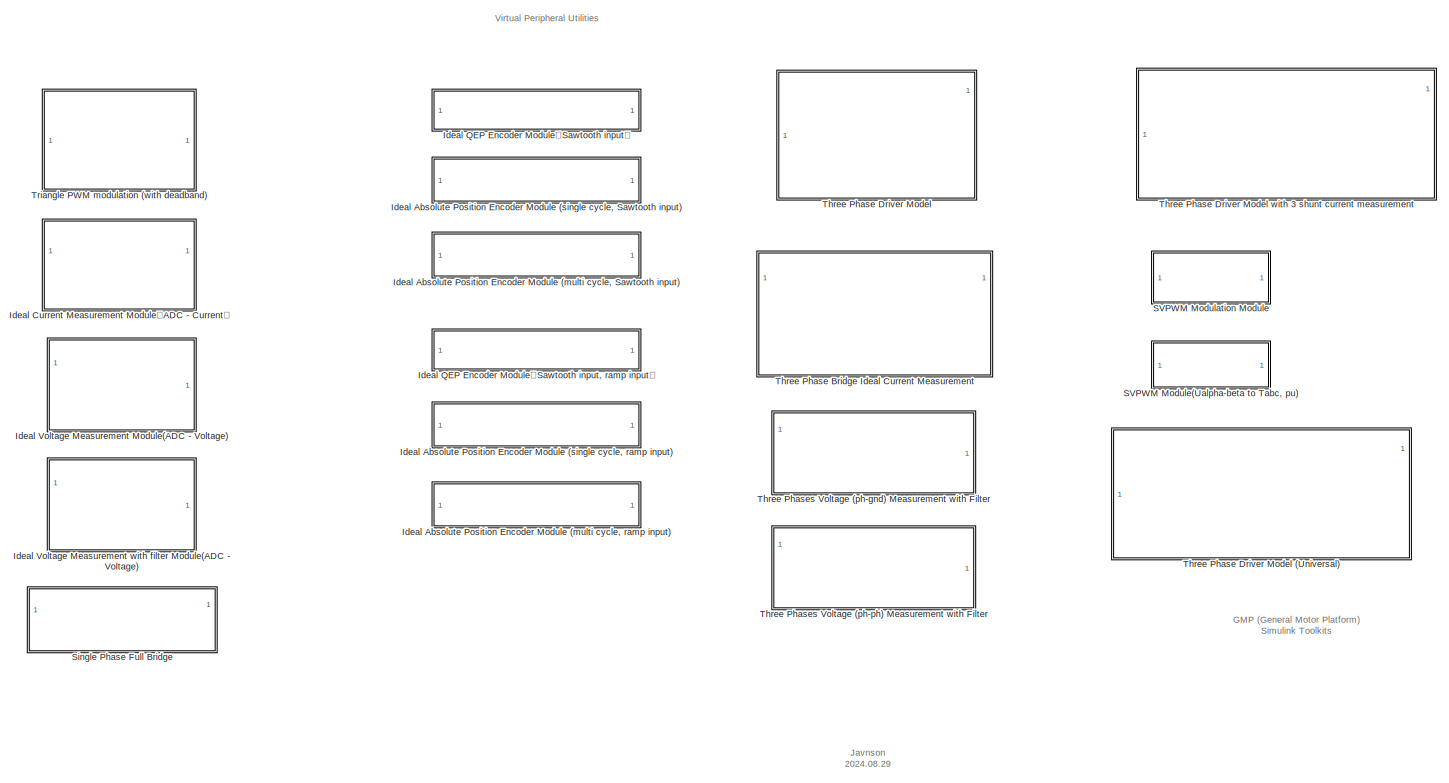
[diagram: root canvas - part 1/1, most of the canvas]
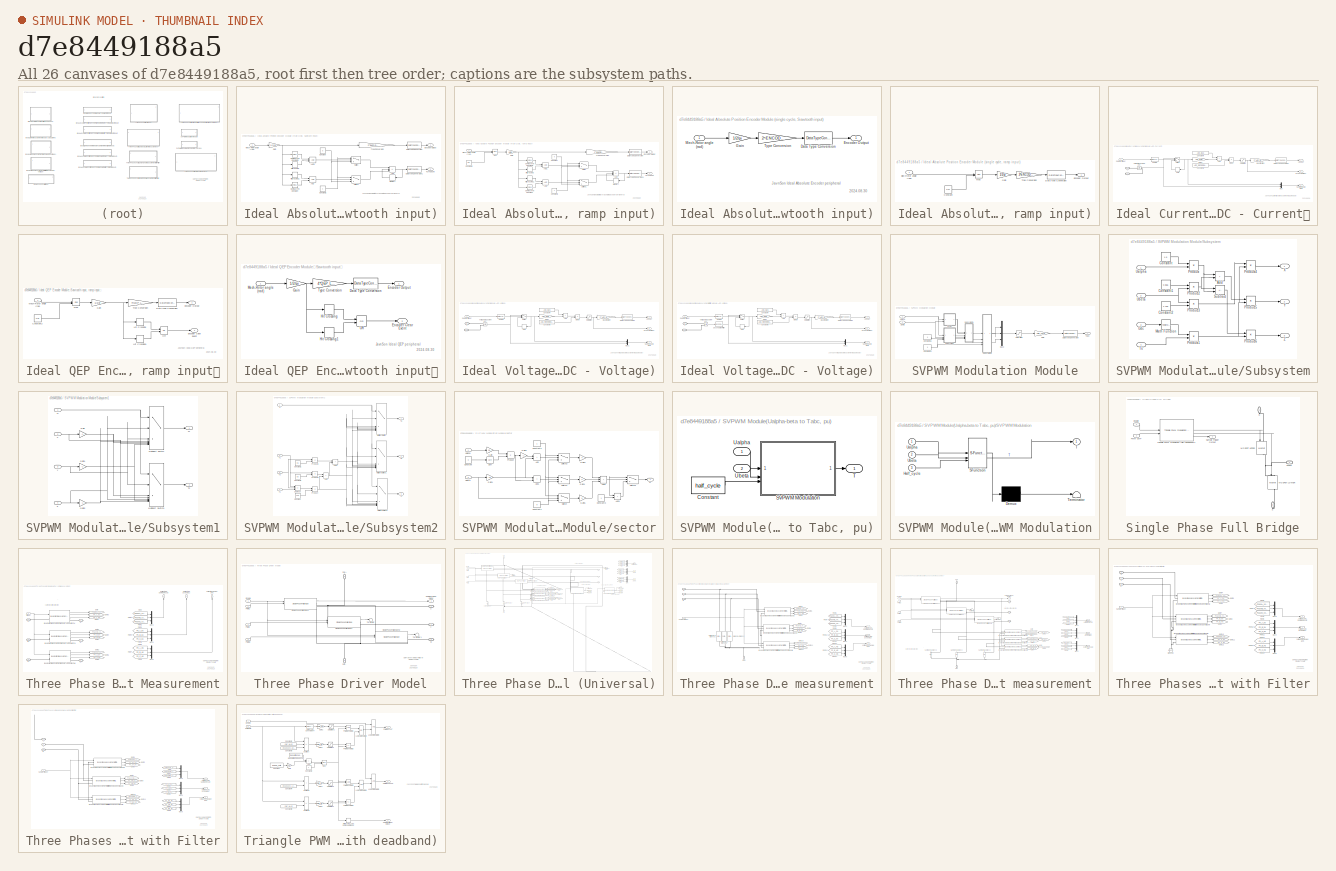
[diagram: thumbnail index - all 26 canvases of the model, root first then tree order]
MODEL slx_d7e8449188a5
KIND library
CONFIG AbsTol = auto
CONFIG EnableMultiTasking = off
CONFIG FixedStep = auto
CONFIG MaxStep = auto
CONFIG MinStep = auto
CONFIG RelTol = 1e-3
CONFIG SampleTimeConstraint = Unconstrained
CONFIG SolverName = VariableStepAuto
CONFIG StartTime = 0.0
CONFIG StopTime = 10.0
BLOCK [SubSystem] Ideal Absolute Position Encoder Module (multi cycle, Sawtooth input)
BLOCK [Logic] Ideal Absolute Position Encoder Module (multi cycle, Sawtooth input)/AND
  AllPortsSameDT = off
  IconShape = distinctive
  OutDataTypeStr = boolean
BLOCK [Logic] Ideal Absolute Position Encoder Module (multi cycle, Sawtooth input)/AND1
  AllPortsSameDT = off
  IconShape = distinctive
  OutDataTypeStr = boolean
BLOCK [Sum] Ideal Absolute Position Encoder Module (multi cycle, Sawtooth input)/Add
  IconShape = rectangular
  Inputs = ++-
BLOCK [Reference] Ideal Absolute Position Encoder Module (multi cycle, Sawtooth input)/Compare To Constant  REF=simulink/Logic and Bit
Operations/Compare
To Constant
  SourceBlock = simulink/Logic and Bit\nOperations/Compare\nTo Constant
  SourceType = Compare To Constant
BLOCK [Reference] Ideal Absolute Position Encoder Module (multi cycle, Sawtooth input)/Compare To Constant1  REF=simulink/Logic and Bit
Operations/Compare
To Constant
  SourceBlock = simulink/Logic and Bit\nOperations/Compare\nTo Constant
  SourceType = Compare To Constant
BLOCK [Constant] Ideal Absolute Position Encoder Module (multi cycle, Sawtooth input)/Constant
  Value = 0
BLOCK [Constant] Ideal Absolute Position Encoder Module (multi cycle, Sawtooth input)/Constant1
BLOCK [DataTypeConversion] Ideal Absolute Position Encoder Module (multi cycle, Sawtooth input)/Data Type Conversion
  OutDataTypeStr = uint32
  RndMeth = Floor
  SaturateOnIntegerOverflow = off
BLOCK [DataTypeConversion] Ideal Absolute Position Encoder Module (multi cycle, Sawtooth input)/Data Type Conversion1
  OutDataTypeStr = int32
  RndMeth = Floor
  SaturateOnIntegerOverflow = off
BLOCK [Outport] Ideal Absolute Position Encoder Module (multi cycle, Sawtooth input)/Encoder Output
BLOCK [Gain] Ideal Absolute Position Encoder Module (multi cycle, Sawtooth input)/Gain
  Gain = 1/2/pi
BLOCK [HitCross] Ideal Absolute Position Encoder Module (multi cycle, Sawtooth input)/Hit Crossing
  HitCrossingDirection = falling
  HitCrossingOffset = 0.5
BLOCK [HitCross] Ideal Absolute Position Encoder Module (multi cycle, Sawtooth input)/Hit Crossing1
  HitCrossingDirection = rising
  HitCrossingOffset = 0.5
BLOCK [Inport] Ideal Absolute Position Encoder Module (multi cycle, Sawtooth input)/Mech-Rotor angle (rad)
BLOCK [Memory] Ideal Absolute Position Encoder Module (multi cycle, Sawtooth input)/Memory
BLOCK [Switch] Ideal Absolute Position Encoder Module (multi cycle, Sawtooth input)/Switch
  Criteria = u2 > Threshold
  InputSameDT = off
  SaturateOnIntegerOverflow = off
  Threshold = 0.5
BLOCK [Switch] Ideal Absolute Position Encoder Module (multi cycle, Sawtooth input)/Switch1
  Criteria = u2 > Threshold
  InputSameDT = off
  SaturateOnIntegerOverflow = off
  Threshold = 0.5
BLOCK [Outport] Ideal Absolute Position Encoder Module (multi cycle, Sawtooth input)/Turn Count
  Port = 2
BLOCK [Gain] Ideal Absolute Position Encoder Module (multi cycle, Sawtooth input)/Type Conversion
  Gain = 2^ENCODER_BIT
BLOCK [SubSystem] Ideal Absolute Position Encoder Module (multi cycle, ramp input)
  AncestorBlock = peripheral_utilities/Ideal Absolute Position Encoder Module (multi cycle, Sawtooth input)
BLOCK [Logic] Ideal Absolute Position Encoder Module (multi cycle, ramp input)/AND
  AllPortsSameDT = off
  IconShape = distinctive
  OutDataTypeStr = boolean
BLOCK [Logic] Ideal Absolute Position Encoder Module (multi cycle, ramp input)/AND1
  AllPortsSameDT = off
  IconShape = distinctive
  OutDataTypeStr = boolean
BLOCK [Sum] Ideal Absolute Position Encoder Module (multi cycle, ramp input)/Add
  IconShape = rectangular
  Inputs = ++-
BLOCK [Reference] Ideal Absolute Position Encoder Module (multi cycle, ramp input)/Compare To Constant  REF=simulink/Logic and Bit
Operations/Compare
To Constant
  SourceBlock = simulink/Logic and Bit\nOperations/Compare\nTo Constant
  SourceType = Compare To Constant
BLOCK [Reference] Ideal Absolute Position Encoder Module (multi cycle, ramp input)/Compare To Constant1  REF=simulink/Logic and Bit
Operations/Compare
To Constant
  SourceBlock = simulink/Logic and Bit\nOperations/Compare\nTo Constant
  SourceType = Compare To Constant
BLOCK [Constant] Ideal Absolute Position Encoder Module (multi cycle, ramp input)/Constant
  Value = 0
BLOCK [Constant] Ideal Absolute Position Encoder Module (multi cycle, ramp input)/Constant1
BLOCK [Constant] Ideal Absolute Position Encoder Module (multi cycle, ramp input)/Constant2
  Value = 2*pi
BLOCK [DataTypeConversion] Ideal Absolute Position Encoder Module (multi cycle, ramp input)/Data Type Conversion
  OutDataTypeStr = uint32
  RndMeth = Floor
  SaturateOnIntegerOverflow = off
BLOCK [DataTypeConversion] Ideal Absolute Position Encoder Module (multi cycle, ramp input)/Data Type Conversion1
  OutDataTypeStr = int32
  RndMeth = Floor
  SaturateOnIntegerOverflow = off
BLOCK [Outport] Ideal Absolute Position Encoder Module (multi cycle, ramp input)/Encoder Output
BLOCK [Gain] Ideal Absolute Position Encoder Module (multi cycle, ramp input)/Gain
  Gain = 1/2/pi
BLOCK [HitCross] Ideal Absolute Position Encoder Module (multi cycle, ramp input)/Hit Crossing
  HitCrossingDirection = falling
  HitCrossingOffset = 0.5
BLOCK [HitCross] Ideal Absolute Position Encoder Module (multi cycle, ramp input)/Hit Crossing1
  HitCrossingDirection = rising
  HitCrossingOffset = 0.5
BLOCK [Inport] Ideal Absolute Position Encoder Module (multi cycle, ramp input)/Mech-Rotor angle (rad)
BLOCK [Memory] Ideal Absolute Position Encoder Module (multi cycle, ramp input)/Memory
BLOCK [Math] Ideal Absolute Position Encoder Module (multi cycle, ramp input)/Mod
  Operator = mod
BLOCK [Switch] Ideal Absolute Position Encoder Module (multi cycle, ramp input)/Switch
  Criteria = u2 > Threshold
  InputSameDT = off
  SaturateOnIntegerOverflow = off
  Threshold = 0.5
BLOCK [Switch] Ideal Absolute Position Encoder Module (multi cycle, ramp input)/Switch1
  Criteria = u2 > Threshold
  InputSameDT = off
  SaturateOnIntegerOverflow = off
  Threshold = 0.5
BLOCK [Outport] Ideal Absolute Position Encoder Module (multi cycle, ramp input)/Turn Count
  Port = 2
BLOCK [Gain] Ideal Absolute Position Encoder Module (multi cycle, ramp input)/Type Conversion
  Gain = 2^ENCODER_BIT
BLOCK [SubSystem] Ideal Absolute Position Encoder Module (single cycle, Sawtooth input)
BLOCK [DataTypeConversion] Ideal Absolute Position Encoder Module (single cycle, Sawtooth input)/Data Type Conversion
  OutDataTypeStr = uint32
  RndMeth = Floor
  SaturateOnIntegerOverflow = off
BLOCK [Outport] Ideal Absolute Position Encoder Module (single cycle, Sawtooth input)/Encoder Output
BLOCK [Gain] Ideal Absolute Position Encoder Module (single cycle, Sawtooth input)/Gain
  Gain = 1/2/pi
BLOCK [Inport] Ideal Absolute Position Encoder Module (single cycle, Sawtooth input)/Mech-Rotor angle (rad)
BLOCK [Gain] Ideal Absolute Position Encoder Module (single cycle, Sawtooth input)/Type Conversion
  Gain = 2^ENCODER_BIT
BLOCK [SubSystem] Ideal Absolute Position Encoder Module (single cycle, ramp input)
BLOCK [Constant] Ideal Absolute Position Encoder Module (single cycle, ramp input)/Constant
  Value = 2*pi
BLOCK [DataTypeConversion] Ideal Absolute Position Encoder Module (single cycle, ramp input)/Data Type Conversion
  OutDataTypeStr = uint32
  RndMeth = Floor
  SaturateOnIntegerOverflow = off
BLOCK [Inport] Ideal Absolute Position Encoder Module (single cycle, ramp input)/Elec-Rotor angle (rad)
BLOCK [Outport] Ideal Absolute Position Encoder Module (single cycle, ramp input)/Encoder Output
BLOCK [Gain] Ideal Absolute Position Encoder Module (single cycle, ramp input)/Gain
  Gain = 1/2/pi
BLOCK [Math] Ideal Absolute Position Encoder Module (single cycle, ramp input)/Mod
  Operator = mod
BLOCK [Gain] Ideal Absolute Position Encoder Module (single cycle, ramp input)/Type Conversion
  Gain = 2^ENCODER_BIT
BLOCK [SubSystem] Ideal Current Measurement Module（ADC - Current）
BLOCK [PMIOPort] Ideal Current Measurement Module（ADC - Current）/+
  Side = Left
BLOCK [PMIOPort] Ideal Current Measurement Module（ADC - Current）/-
  NameLocation = top
  Port = 2
  Side = Right
BLOCK [Outport] Ideal Current Measurement Module（ADC - Current）/ADC OUT
BLOCK [Sum] Ideal Current Measurement Module（ADC - Current）/Add
  IconShape = rectangular
BLOCK [Constant] Ideal Current Measurement Module（ADC - Current）/Constant4
  Value = ADC_BIAS
BLOCK [Constant] Ideal Current Measurement Module（ADC - Current）/Constant5
  Value = ADC_REFERENCE
BLOCK [Reference] Ideal Current Measurement Module（ADC - Current）/Current Measurement  REF=spsCurrentMeasurementLib/Current Measurement
  LibrarySourceBlock = sps_lib/Sensors and Measurements/Current Measurement
  SourceBlock = spsCurrentMeasurementLib/Current Measurement
  SourceType = Current Measurement
  UserDataPersistent = on
BLOCK [DataTypeConversion] Ideal Current Measurement Module（ADC - Current）/Data Type Conversion
  ConvertRealWorld = Stored Integer (SI)
  OutDataTypeStr = uint32
  RndMeth = Floor
  SaturateOnIntegerOverflow = off
BLOCK [Product] Ideal Current Measurement Module（ADC - Current）/Divide
  Inputs = */
BLOCK [Gain] Ideal Current Measurement Module（ADC - Current）/Gain1
  Gain = ADC_GAIN
BLOCK [Memory] Ideal Current Measurement Module（ADC - Current）/Hold
  InitialCondition = ADC_INIT
  LinearizeAsDelay = on
  NameLocation = top
BLOCK [Mux] Ideal Current Measurement Module（ADC - Current）/Mux
  DisplayOption = bar
  Inputs = 2
BLOCK [Gain] Ideal Current Measurement Module（ADC - Current）/Quantization
  Gain = 2^ADC_BIT
BLOCK [DataTypeConversion] Ideal Current Measurement Module（ADC - Current）/Sample
  OutDataTypeStr = boolean
  RndMeth = Floor
  SaturateOnIntegerOverflow = off
BLOCK [Outport] Ideal Current Measurement Module（ADC - Current）/Sample & Hold View
  Port = 3
BLOCK [Inport] Ideal Current Measurement Module（ADC - Current）/Sample Trigger
BLOCK [Saturate] Ideal Current Measurement Module（ADC - Current）/Saturation
  LowerLimit = 0
  UpperLimit = 1
BLOCK [Outport] Ideal Current Measurement Module（ADC - Current）/Scope View (p.u.)
  Port = 2
BLOCK [Switch] Ideal Current Measurement Module（ADC - Current）/Switch
  Threshold = 0.5
BLOCK [SubSystem] Ideal QEP Encoder Module（Sawtooth input, ramp input）
  AncestorBlock = peripheral_utilities/Ideal QEP Encoder Module（Sawtooth input）
BLOCK [Constant] Ideal QEP Encoder Module（Sawtooth input, ramp input）/Constant2
  Value = 2*pi
BLOCK [DataTypeConversion] Ideal QEP Encoder Module（Sawtooth input, ramp input）/Data Type Conversion
  OutDataTypeStr = uint32
  RndMeth = Floor
  SaturateOnIntegerOverflow = off
BLOCK [Outport] Ideal QEP Encoder Module（Sawtooth input, ramp input）/Encoder Clear Event
  Port = 2
BLOCK [Outport] Ideal QEP Encoder Module（Sawtooth input, ramp input）/Encoder Output
BLOCK [Gain] Ideal QEP Encoder Module（Sawtooth input, ramp input）/Gain
  Gain = 1/2/pi
BLOCK [HitCross] Ideal QEP Encoder Module（Sawtooth input, ramp input）/Hit Crossing
  HitCrossingDirection = rising
BLOCK [HitCross] Ideal QEP Encoder Module（Sawtooth input, ramp input）/Hit Crossing1
  HitCrossingDirection = falling
  HitCrossingOffset = 1
BLOCK [Inport] Ideal QEP Encoder Module（Sawtooth input, ramp input）/Mech-Rotor angle (rad)
BLOCK [Math] Ideal QEP Encoder Module（Sawtooth input, ramp input）/Mod
  Operator = mod
BLOCK [Logic] Ideal QEP Encoder Module（Sawtooth input, ramp input）/OR
  AllPortsSameDT = off
  IconShape = distinctive
  Operator = OR
  OutDataTypeStr = boolean
BLOCK [Gain] Ideal QEP Encoder Module（Sawtooth input, ramp input）/Type Conversion
  Gain = 4*QEP_LINE
BLOCK [SubSystem] Ideal QEP Encoder Module（Sawtooth input）
BLOCK [DataTypeConversion] Ideal QEP Encoder Module（Sawtooth input）/Data Type Conversion
  OutDataTypeStr = uint32
  RndMeth = Floor
  SaturateOnIntegerOverflow = off
BLOCK [Outport] Ideal QEP Encoder Module（Sawtooth input）/Encoder Clear Event
  Port = 2
BLOCK [Outport] Ideal QEP Encoder Module（Sawtooth input）/Encoder Output
BLOCK [Gain] Ideal QEP Encoder Module（Sawtooth input）/Gain
  Gain = 1/2/pi
BLOCK [HitCross] Ideal QEP Encoder Module（Sawtooth input）/Hit Crossing
  HitCrossingDirection = rising
BLOCK [HitCross] Ideal QEP Encoder Module（Sawtooth input）/Hit Crossing1
  HitCrossingDirection = falling
  HitCrossingOffset = 1
BLOCK [Inport] Ideal QEP Encoder Module（Sawtooth input）/Mech-Rotor angle (rad)
BLOCK [Logic] Ideal QEP Encoder Module（Sawtooth input）/OR
  AllPortsSameDT = off
  IconShape = distinctive
  Operator = OR
  OutDataTypeStr = boolean
BLOCK [Gain] Ideal QEP Encoder Module（Sawtooth input）/Type Conversion
  Gain = 4*QEP_LINE
BLOCK [SubSystem] Ideal Voltage Measurement Module(ADC - Voltage)
BLOCK [PMIOPort] Ideal Voltage Measurement Module(ADC - Voltage)/+
  Side = Left
BLOCK [PMIOPort] Ideal Voltage Measurement Module(ADC - Voltage)/-
  Port = 2
  Side = Left
BLOCK [Outport] Ideal Voltage Measurement Module(ADC - Voltage)/ADC OUT
BLOCK [Sum] Ideal Voltage Measurement Module(ADC - Voltage)/Add
  IconShape = rectangular
BLOCK [Constant] Ideal Voltage Measurement Module(ADC - Voltage)/Constant4
  Value = ADC_BIAS
BLOCK [Constant] Ideal Voltage Measurement Module(ADC - Voltage)/Constant5
  Value = ADC_REFERENCE
BLOCK [DataTypeConversion] Ideal Voltage Measurement Module(ADC - Voltage)/Data Type Conversion
  ConvertRealWorld = Stored Integer (SI)
  OutDataTypeStr = uint32
  RndMeth = Floor
  SaturateOnIntegerOverflow = off
BLOCK [Product] Ideal Voltage Measurement Module(ADC - Voltage)/Divide
  Inputs = */
BLOCK [Gain] Ideal Voltage Measurement Module(ADC - Voltage)/Gain1
  Gain = ADC_GAIN
BLOCK [Memory] Ideal Voltage Measurement Module(ADC - Voltage)/Hold
  InitialCondition = ADC_INIT
  LinearizeAsDelay = on
  NameLocation = top
BLOCK [Mux] Ideal Voltage Measurement Module(ADC - Voltage)/Mux1
  DisplayOption = bar
  Inputs = 2
BLOCK [Gain] Ideal Voltage Measurement Module(ADC - Voltage)/Quantization
  Gain = 2^ADC_BIT
BLOCK [DataTypeConversion] Ideal Voltage Measurement Module(ADC - Voltage)/Sample
  OutDataTypeStr = boolean
  RndMeth = Floor
  SaturateOnIntegerOverflow = off
BLOCK [Outport] Ideal Voltage Measurement Module(ADC - Voltage)/Sample & Hold View
  Port = 3
BLOCK [Inport] Ideal Voltage Measurement Module(ADC - Voltage)/Sample Trigger
BLOCK [Saturate] Ideal Voltage Measurement Module(ADC - Voltage)/Saturation
  LowerLimit = 0
  UpperLimit = 1
BLOCK [Outport] Ideal Voltage Measurement Module(ADC - Voltage)/Scope View (p.u.)
  Port = 2
BLOCK [Switch] Ideal Voltage Measurement Module(ADC - Voltage)/Switch
  Threshold = 0.5
BLOCK [Reference] Ideal Voltage Measurement Module(ADC - Voltage)/Voltage Measurement  REF=spsVoltageMeasurementLib/Voltage Measurement
  LibrarySourceBlock = sps_lib/Sensors and Measurements/Voltage Measurement
  SourceBlock = spsVoltageMeasurementLib/Voltage Measurement
  SourceType = Voltage Measurement
  UserDataPersistent = on
BLOCK [SubSystem] Ideal Voltage Measurement with filter Module(ADC - Voltage)
BLOCK [PMIOPort] Ideal Voltage Measurement with filter Module(ADC - Voltage)/+
  Side = Left
BLOCK [PMIOPort] Ideal Voltage Measurement with filter Module(ADC - Voltage)/-
  Port = 2
  Side = Left
BLOCK [Outport] Ideal Voltage Measurement with filter Module(ADC - Voltage)/ADC OUT
BLOCK [Sum] Ideal Voltage Measurement with filter Module(ADC - Voltage)/Add
  IconShape = rectangular
BLOCK [Constant] Ideal Voltage Measurement with filter Module(ADC - Voltage)/Constant4
  Value = ADC_BIAS
BLOCK [Constant] Ideal Voltage Measurement with filter Module(ADC - Voltage)/Constant5
  Value = ADC_REFERENCE
BLOCK [DataTypeConversion] Ideal Voltage Measurement with filter Module(ADC - Voltage)/Data Type Conversion
  ConvertRealWorld = Stored Integer (SI)
  OutDataTypeStr = uint32
  RndMeth = Floor
  SaturateOnIntegerOverflow = off
BLOCK [Product] Ideal Voltage Measurement with filter Module(ADC - Voltage)/Divide
  Inputs = */
BLOCK [Gain] Ideal Voltage Measurement with filter Module(ADC - Voltage)/Gain1
  Gain = ADC_GAIN
BLOCK [Memory] Ideal Voltage Measurement with filter Module(ADC - Voltage)/Hold
  InitialCondition = ADC_INIT
  LinearizeAsDelay = on
  NameLocation = top
BLOCK [Mux] Ideal Voltage Measurement with filter Module(ADC - Voltage)/Mux1
  DisplayOption = bar
  Inputs = 2
BLOCK [Gain] Ideal Voltage Measurement with filter Module(ADC - Voltage)/Quantization
  Gain = 2^ADC_BIT
BLOCK [DataTypeConversion] Ideal Voltage Measurement with filter Module(ADC - Voltage)/Sample
  OutDataTypeStr = boolean
  RndMeth = Floor
  SaturateOnIntegerOverflow = off
BLOCK [Outport] Ideal Voltage Measurement with filter Module(ADC - Voltage)/Sample & Hold View
  Port = 3
BLOCK [Inport] Ideal Voltage Measurement with filter Module(ADC - Voltage)/Sample Trigger
BLOCK [Saturate] Ideal Voltage Measurement with filter Module(ADC - Voltage)/Saturation
  LowerLimit = 0
  UpperLimit = 1
BLOCK [Outport] Ideal Voltage Measurement with filter Module(ADC - Voltage)/Scope View (p.u.)
  Port = 2
BLOCK [Reference] Ideal Voltage Measurement with filter Module(ADC - Voltage)/Second-Order Filter  REF=spsSecondOrderFilterLib/Second-Order
Filter
  LibrarySourceBlock = sps_lib/Control/Filters/Second-Order\nFilter
  SourceBlock = spsSecondOrderFilterLib/Second-Order\nFilter
  SourceType = Second-Order Filter
BLOCK [Switch] Ideal Voltage Measurement with filter Module(ADC - Voltage)/Switch
  Threshold = 0.5
BLOCK [Reference] Ideal Voltage Measurement with filter Module(ADC - Voltage)/Voltage Measurement  REF=spsVoltageMeasurementLib/Voltage Measurement
  LibrarySourceBlock = sps_lib/Sensors and Measurements/Voltage Measurement
  SourceBlock = spsVoltageMeasurementLib/Voltage Measurement
  SourceType = Voltage Measurement
  UserDataPersistent = on
BLOCK [SubSystem] SVPWM Modulation Module
BLOCK [Constant] SVPWM Modulation Module/Constant14
BLOCK [Constant] SVPWM Modulation Module/Constant15
BLOCK [DataTypeConversion] SVPWM Modulation Module/Data Type Conversion
  OutDataTypeStr = uint32
  RndMeth = Floor
  SaturateOnIntegerOverflow = off
BLOCK [Gain] SVPWM Modulation Module/Gain
  Gain = half_cmp
BLOCK [Mux] SVPWM Modulation Module/Mux3
  DisplayOption = bar
  Inputs = 3
BLOCK [Saturate] SVPWM Modulation Module/Saturation
  LowerLimit = -1
  UpperLimit = 1
BLOCK [SubSystem] SVPWM Modulation Module/Subsystem
BLOCK [Sum] SVPWM Modulation Module/Subsystem/Add
  IconShape = rectangular
BLOCK [Constant] SVPWM Modulation Module/Subsystem/Constant
  Value = 1.5
BLOCK [Constant] SVPWM Modulation Module/Subsystem/Constant1
  Value = 0.866
BLOCK [Constant] SVPWM Modulation Module/Subsystem/Constant2
  Value = 1.732
BLOCK [Math] SVPWM Modulation Module/Subsystem/Math Function
  Operator = reciprocal
BLOCK [Product] SVPWM Modulation Module/Subsystem/Product
BLOCK [Product] SVPWM Modulation Module/Subsystem/Product1
BLOCK [Product] SVPWM Modulation Module/Subsystem/Product2
BLOCK [Product] SVPWM Modulation Module/Subsystem/Product3
BLOCK [Product] SVPWM Modulation Module/Subsystem/Product4
BLOCK [Product] SVPWM Modulation Module/Subsystem/Product5
BLOCK [Product] SVPWM Modulation Module/Subsystem/Product6
BLOCK [Sum] SVPWM Modulation Module/Subsystem/Subtract
  IconShape = rectangular
  Inputs = +-
BLOCK [Inport] SVPWM Modulation Module/Subsystem/Ts
  Port = 4
BLOCK [Inport] SVPWM Modulation Module/Subsystem/Ualpha
BLOCK [Inport] SVPWM Modulation Module/Subsystem/Ubeta
  Port = 2
BLOCK [Inport] SVPWM Modulation Module/Subsystem/Udc
  Port = 3
BLOCK [Outport] SVPWM Modulation Module/Subsystem/X
BLOCK [Outport] SVPWM Modulation Module/Subsystem/Y
  Port = 2
BLOCK [Outport] SVPWM Modulation Module/Subsystem/Z
  Port = 3
BLOCK [SubSystem] SVPWM Modulation Module/Subsystem1
BLOCK [Gain] SVPWM Modulation Module/Subsystem1/Gain
  Gain = -1
BLOCK [Gain] SVPWM Modulation Module/Subsystem1/Gain1
  Gain = -1
BLOCK [Gain] SVPWM Modulation Module/Subsystem1/Gain2
  Gain = -1
BLOCK [MultiPortSwitch] SVPWM Modulation Module/Subsystem1/Multiport Switch
  DiagnosticForDefault = None
  InputSameDT = off
  Inputs = 6
  SaturateOnIntegerOverflow = off
BLOCK [MultiPortSwitch] SVPWM Modulation Module/Subsystem1/Multiport Switch1
  DiagnosticForDefault = None
  InputSameDT = off
  Inputs = 6
  SaturateOnIntegerOverflow = off
BLOCK [Inport] SVPWM Modulation Module/Subsystem1/N
BLOCK [Outport] SVPWM Modulation Module/Subsystem1/T1
BLOCK [Outport] SVPWM Modulation Module/Subsystem1/T2
  Port = 2
BLOCK [Inport] SVPWM Modulation Module/Subsystem1/X
  Port = 2
BLOCK [Inport] SVPWM Modulation Module/Subsystem1/Y
  Port = 3
BLOCK [Inport] SVPWM Modulation Module/Subsystem1/Z
  Port = 4
BLOCK [SubSystem] SVPWM Modulation Module/Subsystem2
BLOCK [Sum] SVPWM Modulation Module/Subsystem2/Add
  IconShape = rectangular
BLOCK [Sum] SVPWM Modulation Module/Subsystem2/Add1
  IconShape = rectangular
BLOCK [Constant] SVPWM Modulation Module/Subsystem2/Constant
  Value = 0.25
BLOCK [Constant] SVPWM Modulation Module/Subsystem2/Constant1
  Value = 0.5
BLOCK [Constant] SVPWM Modulation Module/Subsystem2/Constant2
  Value = 0.5
BLOCK [MultiPortSwitch] SVPWM Modulation Module/Subsystem2/Multiport Switch
  DiagnosticForDefault = None
  InputSameDT = off
  Inputs = 6
  SaturateOnIntegerOverflow = off
BLOCK [MultiPortSwitch] SVPWM Modulation Module/Subsystem2/Multiport Switch1
  DiagnosticForDefault = None
  InputSameDT = off
  Inputs = 6
  SaturateOnIntegerOverflow = off
BLOCK [MultiPortSwitch] SVPWM Modulation Module/Subsystem2/Multiport Switch2
  DiagnosticForDefault = None
  InputSameDT = off
  Inputs = 6
  SaturateOnIntegerOverflow = off
BLOCK [Inport] SVPWM Modulation Module/Subsystem2/N
BLOCK [Product] SVPWM Modulation Module/Subsystem2/Product
BLOCK [Product] SVPWM Modulation Module/Subsystem2/Product1
BLOCK [Product] SVPWM Modulation Module/Subsystem2/Product2
BLOCK [Sum] SVPWM Modulation Module/Subsystem2/Subtract
  IconShape = rectangular
  Inputs = --+
BLOCK [Inport] SVPWM Modulation Module/Subsystem2/T1
  Interpolate = off
  Port = 2
BLOCK [Inport] SVPWM Modulation Module/Subsystem2/T2
  Port = 3
BLOCK [Outport] SVPWM Modulation Module/Subsystem2/Ta
BLOCK [Outport] SVPWM Modulation Module/Subsystem2/Tb
  Port = 2
BLOCK [Outport] SVPWM Modulation Module/Subsystem2/Tc
  Port = 3
BLOCK [Inport] SVPWM Modulation Module/Subsystem2/Ts
  Port = 4
BLOCK [Outport] SVPWM Modulation Module/Tabc
BLOCK [Inport] SVPWM Modulation Module/Ualpha
BLOCK [Inport] SVPWM Modulation Module/Ubeta
  Port = 2
BLOCK [SubSystem] SVPWM Modulation Module/sector
BLOCK [Sum] SVPWM Modulation Module/sector/Add
  IconShape = rectangular
BLOCK [Sum] SVPWM Modulation Module/sector/Add1
  IconShape = rectangular
BLOCK [Sum] SVPWM Modulation Module/sector/Add2
  IconShape = rectangular
  Inputs = +++
BLOCK [Sum] SVPWM Modulation Module/sector/Add3
  IconShape = rectangular
BLOCK [Constant] SVPWM Modulation Module/sector/Constant
  Value = 3
BLOCK [Constant] SVPWM Modulation Module/sector/Constant1
  Value = 0
BLOCK [Constant] SVPWM Modulation Module/sector/Constant2
BLOCK [Constant] SVPWM Modulation Module/sector/Constant3
BLOCK [Gain] SVPWM Modulation Module/sector/Gain
  Gain = 0.5
BLOCK [Gain] SVPWM Modulation Module/sector/Gain1
  Gain = -1/2
BLOCK [Gain] SVPWM Modulation Module/sector/Gain2
  Gain = -1
BLOCK [Gain] SVPWM Modulation Module/sector/Gain3
  Gain = 4
BLOCK [Gain] SVPWM Modulation Module/sector/Gain4
  Gain = 2
BLOCK [Gain] SVPWM Modulation Module/sector/Gain5
BLOCK [Outport] SVPWM Modulation Module/sector/N
BLOCK [Product] SVPWM Modulation Module/sector/Product
BLOCK [Sqrt] SVPWM Modulation Module/sector/Sqrt
BLOCK [Switch] SVPWM Modulation Module/sector/Switch
  InputSameDT = off
  SaturateOnIntegerOverflow = off
BLOCK [Switch] SVPWM Modulation Module/sector/Switch1
  InputSameDT = off
  SaturateOnIntegerOverflow = off
BLOCK [Switch] SVPWM Modulation Module/sector/Switch2
  InputSameDT = off
  SaturateOnIntegerOverflow = off
BLOCK [Switch] SVPWM Modulation Module/sector/Switch3
  Criteria = u2 > Threshold
  InputSameDT = off
  SaturateOnIntegerOverflow = off
BLOCK [Inport] SVPWM Modulation Module/sector/Ualpha
BLOCK [Inport] SVPWM Modulation Module/sector/Ubeta
  Port = 2
BLOCK [SubSystem] SVPWM Module(Ualpha-beta to Tabc, pu)
BLOCK [Constant] SVPWM Module(Ualpha-beta to Tabc, pu)/Constant
  Value = half_cycle
BLOCK [SubSystem] SVPWM Module(Ualpha-beta to Tabc, pu)/SVPWM Modulation
  ErrorFcn = Stateflow.Translate.translate
  LibrarySourceBlock = simulink/User-Defined\nFunctions/MATLAB Function
  PermitHierarchicalResolution = ExplicitOnly
  SFBlockType = MATLAB Function
  TreatAsAtomicUnit = on
BLOCK [Demux] SVPWM Module(Ualpha-beta to Tabc, pu)/SVPWM Modulation/ Demux 
  Outputs = 1
BLOCK [S-Function] SVPWM Module(Ualpha-beta to Tabc, pu)/SVPWM Modulation/ SFunction 
  EnableBusSupport = on
  FunctionName = sf_sfun
  PortCounts = [3 2]
  SFcnIsStateOwnerBlock = off
  SFunctionDeploymentMode = off
  Tag = Stateflow S-Function 1
BLOCK [Terminator] SVPWM Module(Ualpha-beta to Tabc, pu)/SVPWM Modulation/ Terminator 
BLOCK [Inport] SVPWM Module(Ualpha-beta to Tabc, pu)/SVPWM Modulation/Half_cycle
  Port = 3
BLOCK [Outport] SVPWM Module(Ualpha-beta to Tabc, pu)/SVPWM Modulation/T
BLOCK [Inport] SVPWM Module(Ualpha-beta to Tabc, pu)/SVPWM Modulation/Ualpha
BLOCK [Inport] SVPWM Module(Ualpha-beta to Tabc, pu)/SVPWM Modulation/Ubeta
  Port = 2
BLOCK [Outport] SVPWM Module(Ualpha-beta to Tabc, pu)/T
BLOCK [Inport] SVPWM Module(Ualpha-beta to Tabc, pu)/Ualpha
BLOCK [Inport] SVPWM Module(Ualpha-beta to Tabc, pu)/Ubeta
  Port = 2
BLOCK [SubSystem] Single Phase Full Bridge
  PortSchema = {"entries":[{"content":{"sides":[{"content":{"connectorIds":["In1","In2"]},"type":"ConnectorPlacement.EquallySpacedRectSide","uuid":"20beeabc-b0ca-4337-b227-c7f02abd15d8"},{"content":{"connectorIds":["Out1","RConn1"],"side":"RIGHT"},"type":"ConnectorPlacement.EquallySpacedRectSide","uuid":"a7923383-ac55-4621-ad1d-4d067c1fb84d"},{"content":{"connectorIds":["LConn1"],"side":"TOP"},"type":"ConnectorP...<+415ch>
BLOCK [PMIOPort] Single Phase Full Bridge/D
  NameLocation = left
  Side = Left
BLOCK [Inport] Single Phase Full Bridge/Enable
BLOCK [Reference] Single Phase Full Bridge/MOSFET LOWER  REF=spsMosfetLib/Mosfet
  LibrarySourceBlock = sps_lib/Power Electronics/Mosfet
  NameLocation = left
  SourceBlock = spsMosfetLib/Mosfet
  SourceType = Mosfet
BLOCK [Reference] Single Phase Full Bridge/MOSFET UPPER  REF=spsMosfetLib/Mosfet
  LibrarySourceBlock = sps_lib/Power Electronics/Mosfet
  NameLocation = left
  SourceBlock = spsMosfetLib/Mosfet
  SourceType = Mosfet
BLOCK [Inport] Single Phase Full Bridge/PWM CMP
  Port = 2
BLOCK [PMIOPort] Single Phase Full Bridge/Phase
  Port = 2
  Side = Right
BLOCK [PMIOPort] Single Phase Full Bridge/S
  NameLocation = left
  Port = 3
  Side = Right
BLOCK [Outport] Single Phase Full Bridge/Sample Trigger Output
BLOCK [Reference] Single Phase Full Bridge/Triangle PWM modulation (with deadband)1  REF=$bdroot/Triangle PWM modulation (with deadband)
  SourceBlock = $bdroot/Triangle PWM modulation (with deadband)
BLOCK [SubSystem] Three Phase Bridge Ideal Current Measurement
  PortSchema = {"entries":[{"content":{"sides":[{"content":{"connectorIds":["In1","LConn1","LConn2","LConn3"]},"type":"ConnectorPlacement.EquallySpacedRectSide","uuid":"b346a103-34dd-44fb-8c54-df97898fe3d3"},{"content":{"connectorIds":["RConn1","RConn2","RConn3"],"side":"RIGHT"},"type":"ConnectorPlacement.EquallySpacedRectSide","uuid":"8f839403-d503-4f8a-9801-ccf54d332627"},{"content":{"connectorIds":["Out1","Ou...<+307ch>
BLOCK [PMIOPort] Three Phase Bridge Ideal Current Measurement/A+
  Side = Left
BLOCK [PMIOPort] Three Phase Bridge Ideal Current Measurement/B+
  Port = 2
  Side = Left
BLOCK [PMIOPort] Three Phase Bridge Ideal Current Measurement/C+
  Port = 3
  Side = Left
BLOCK [Outport] Three Phase Bridge Ideal Current Measurement/Current ADC Sample Result
  NameLocation = right
BLOCK [Outport] Three Phase Bridge Ideal Current Measurement/Current ADC Scope(p.u.)
  NameLocation = right
  Port = 2
BLOCK [Outport] Three Phase Bridge Ideal Current Measurement/Current Real Value & HS
  NameLocation = right
  Port = 3
BLOCK [From] Three Phase Bridge Ideal Current Measurement/From
  GotoTag = PhaseA_current
BLOCK [From] Three Phase Bridge Ideal Current Measurement/From1
  GotoTag = PhaseB_current
BLOCK [From] Three Phase Bridge Ideal Current Measurement/From2
  GotoTag = PhaseC_current
BLOCK [From] Three Phase Bridge Ideal Current Measurement/From3
  GotoTag = Ph_A_pu
BLOCK [From] Three Phase Bridge Ideal Current Measurement/From4
  GotoTag = Ph_B_pu
BLOCK [From] Three Phase Bridge Ideal Current Measurement/From5
  GotoTag = Ph_C_pu
BLOCK [From] Three Phase Bridge Ideal Current Measurement/From6
  GotoTag = Ph_A_HS
BLOCK [From] Three Phase Bridge Ideal Current Measurement/From7
  GotoTag = Ph_B_HS
BLOCK [From] Three Phase Bridge Ideal Current Measurement/From8
  GotoTag = Ph_C_HS
BLOCK [Goto] Three Phase Bridge Ideal Current Measurement/Goto
  GotoTag = PhaseA_current
BLOCK [Goto] Three Phase Bridge Ideal Current Measurement/Goto1
  GotoTag = PhaseB_current
BLOCK [Goto] Three Phase Bridge Ideal Current Measurement/Goto2
  GotoTag = PhaseC_current
BLOCK [Goto] Three Phase Bridge Ideal Current Measurement/Goto3
  GotoTag = Ph_A_pu
BLOCK [Goto] Three Phase Bridge Ideal Current Measurement/Goto4
  GotoTag = Ph_B_pu
BLOCK [Goto] Three Phase Bridge Ideal Current Measurement/Goto5
  GotoTag = Ph_C_pu
BLOCK [Goto] Three Phase Bridge Ideal Current Measurement/Goto6
  GotoTag = Ph_A_HS
BLOCK [Goto] Three Phase Bridge Ideal Current Measurement/Goto7
  GotoTag = Ph_B_HS
BLOCK [Goto] Three Phase Bridge Ideal Current Measurement/Goto8
  GotoTag = Ph_C_HS
BLOCK [Reference] Three Phase Bridge Ideal Current Measurement/Ideal Current Measurement Module（ADC - Current）-U  REF=$bdroot/Ideal Current Measurement Module（ADC - Current）
  SourceBlock = $bdroot/Ideal Current Measurement Module（ADC - Current）
BLOCK [Reference] Three Phase Bridge Ideal Current Measurement/Ideal Current Measurement Module（ADC - Current）-V  REF=$bdroot/Ideal Current Measurement Module（ADC - Current）
  SourceBlock = $bdroot/Ideal Current Measurement Module（ADC - Current）
BLOCK [Reference] Three Phase Bridge Ideal Current Measurement/Ideal Current Measurement Module（ADC - Current）-W  REF=$bdroot/Ideal Current Measurement Module（ADC - Current）
  SourceBlock = $bdroot/Ideal Current Measurement Module（ADC - Current）
BLOCK [Mux] Three Phase Bridge Ideal Current Measurement/Mux3
  DisplayOption = bar
  Inputs = 3
BLOCK [Mux] Three Phase Bridge Ideal Current Measurement/Mux4
  DisplayOption = bar
  Inputs = 3
BLOCK [Mux] Three Phase Bridge Ideal Current Measurement/Mux5
  DisplayOption = bar
  Inputs = 3
BLOCK [Inport] Three Phase Bridge Ideal Current Measurement/Trigger
BLOCK [PMIOPort] Three Phase Bridge Ideal Current Measurement/a-
  Port = 4
  Side = Right
BLOCK [PMIOPort] Three Phase Bridge Ideal Current Measurement/b-
  Port = 5
  Side = Right
BLOCK [PMIOPort] Three Phase Bridge Ideal Current Measurement/c-
  Port = 6
  Side = Right
BLOCK [SubSystem] Three Phase Driver Model
  PortSchema = {"entries":[{"content":{"sides":[{"content":{"connectorIds":["In1","In2","In3","In4"]},"type":"ConnectorPlacement.EquallySpacedRectSide","uuid":"3ffcf095-7a60-4897-81b4-d3692ae6e2ab"},{"content":{"connectorIds":["Out1","RConn1","RConn2","RConn3"],"side":"RIGHT"},"type":"ConnectorPlacement.EquallySpacedRectSide","uuid":"6e5cf4cf-b1b9-48ac-a692-0a8874277a23"},{"content":{"connectorIds":[],"side":"TO...<+446ch>
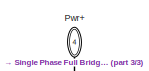
[diagram: Three Phase Driver Model (Universal) - part 1/3, top left region]
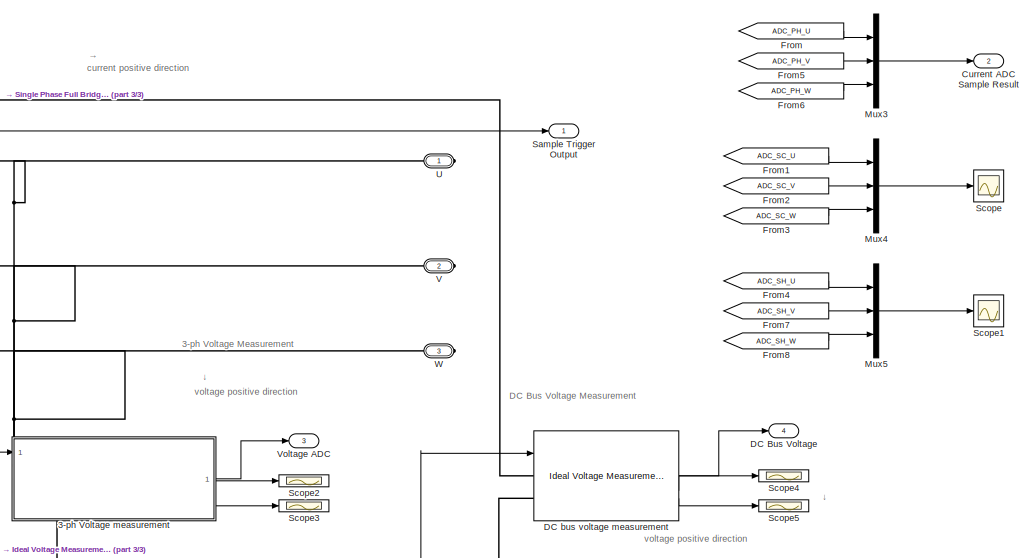
[diagram: Three Phase Driver Model (Universal) - part 2/3, top right region]
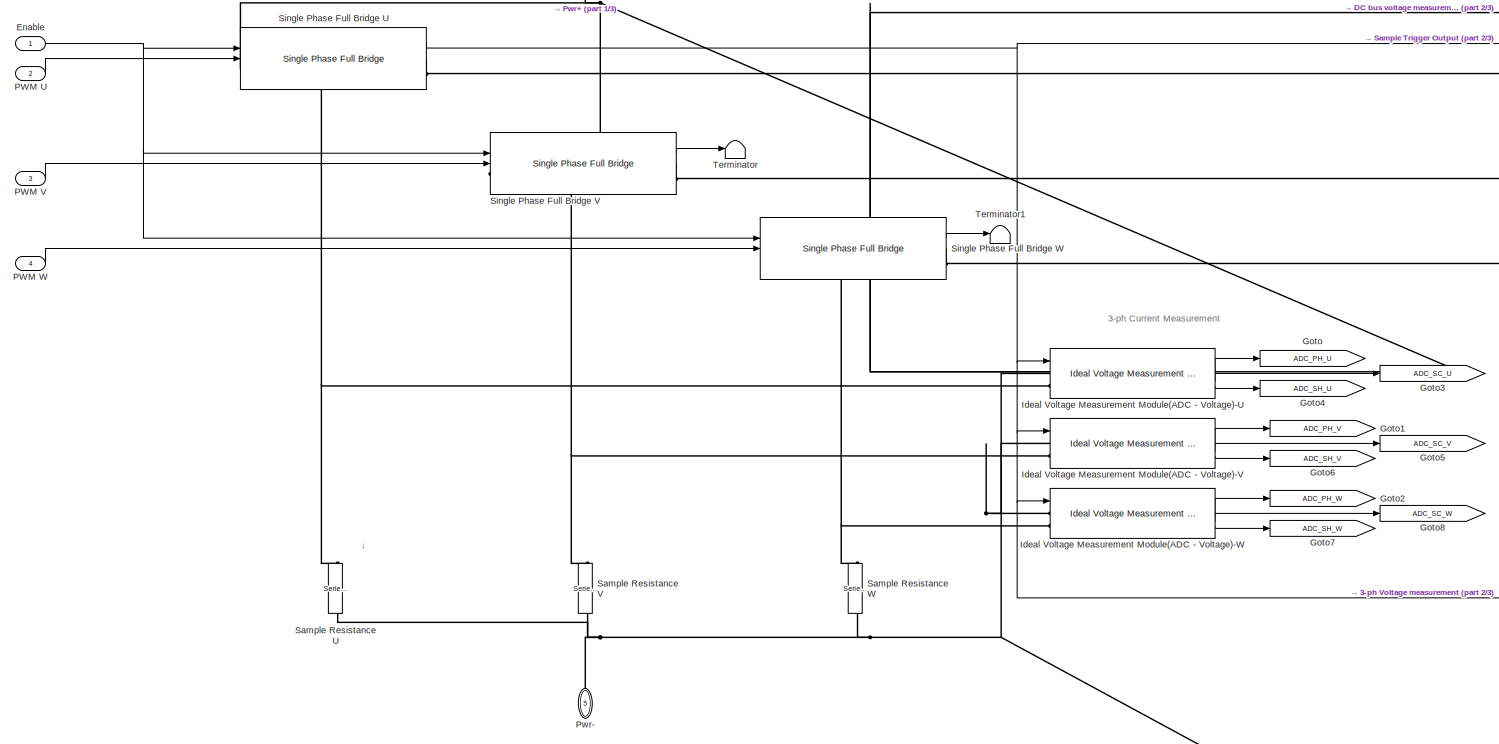
[diagram: Three Phase Driver Model (Universal) - part 3/3, top left region]
BLOCK [SubSystem] Three Phase Driver Model (Universal)
  AncestorBlock = peripheral_utilities/Three Phase Driver Model (Universal)
  PortSchema = {"entries":[{"content":{"sides":[{"content":{"connectorIds":["In1","In2","In3","In4"]},"type":"ConnectorPlacement.EquallySpacedRectSide","uuid":"3f4c86ad-0582-4f47-8583-a8af9a7f9adc"},{"content":{"connectorIds":["Out1","RConn1","RConn2","RConn3"],"side":"RIGHT"},"type":"ConnectorPlacement.EquallySpacedRectSide","uuid":"ae91f325-3014-4188-9063-296f4d5623fa"},{"content":{"connectorIds":["Out2","Out3...<+466ch>
BLOCK [SubSystem] Three Phase Driver Model (Universal)/3-ph Voltage measurement
  AncestorBlock = peripheral_utilities/Three Phases Voltage (ph-gnd) Measurement with Filter
  PortSchema = {"entries":[{"content":{"sides":[{"content":{"connectorIds":["In1"]},"type":"ConnectorPlacement.EquallySpacedRectSide","uuid":"ae4f4612-c092-4fa0-8a43-5c9e823110e3"},{"content":{"connectorIds":["Out1","Out2","Out3"],"side":"RIGHT"},"type":"ConnectorPlacement.EquallySpacedRectSide","uuid":"6db15ef0-d33a-4775-b4e6-14a566796673"},{"content":{"connectorIds":["LConn1","LConn2","LConn3","LConn4"],"side"...<+289ch>
BLOCK [From] Three Phase Driver Model (Universal)/3-ph Voltage measurement/From10
  GotoTag = Ph_B_pu
BLOCK [From] Three Phase Driver Model (Universal)/3-ph Voltage measurement/From11
  GotoTag = Ph_C_pu
BLOCK [From] Three Phase Driver Model (Universal)/3-ph Voltage measurement/From12
  GotoTag = Ph_A_HS
BLOCK [From] Three Phase Driver Model (Universal)/3-ph Voltage measurement/From13
  GotoTag = Ph_B_HS
BLOCK [From] Three Phase Driver Model (Universal)/3-ph Voltage measurement/From14
  GotoTag = Ph_C_HS
BLOCK [From] Three Phase Driver Model (Universal)/3-ph Voltage measurement/From6
  GotoTag = PhaseA_voltage
BLOCK [From] Three Phase Driver Model (Universal)/3-ph Voltage measurement/From7
  GotoTag = PhaseB_voltage
BLOCK [From] Three Phase Driver Model (Universal)/3-ph Voltage measurement/From8
  GotoTag = PhaseC_voltage
BLOCK [From] Three Phase Driver Model (Universal)/3-ph Voltage measurement/From9
  GotoTag = Ph_A_pu
BLOCK [PMIOPort] Three Phase Driver Model (Universal)/3-ph Voltage measurement/GND
  NameLocation = right
  Port = 4
  Side = Left
BLOCK [Goto] Three Phase Driver Model (Universal)/3-ph Voltage measurement/Goto10
  GotoTag = PhaseC_voltage
BLOCK [Goto] Three Phase Driver Model (Universal)/3-ph Voltage measurement/Goto11
  GotoTag = Ph_C_pu
BLOCK [Goto] Three Phase Driver Model (Universal)/3-ph Voltage measurement/Goto12
  GotoTag = Ph_C_HS
BLOCK [Goto] Three Phase Driver Model (Universal)/3-ph Voltage measurement/Goto4
  GotoTag = PhaseA_voltage
BLOCK [Goto] Three Phase Driver Model (Universal)/3-ph Voltage measurement/Goto5
  GotoTag = Ph_A_pu
BLOCK [Goto] Three Phase Driver Model (Universal)/3-ph Voltage measurement/Goto6
  GotoTag = Ph_A_HS
BLOCK [Goto] Three Phase Driver Model (Universal)/3-ph Voltage measurement/Goto7
  GotoTag = PhaseB_voltage
BLOCK [Goto] Three Phase Driver Model (Universal)/3-ph Voltage measurement/Goto8
  GotoTag = Ph_B_pu
BLOCK [Goto] Three Phase Driver Model (Universal)/3-ph Voltage measurement/Goto9
  GotoTag = Ph_B_HS
BLOCK [Reference] Three Phase Driver Model (Universal)/3-ph Voltage measurement/Ideal Voltage Measurement with filter Module(ADC - Voltage)-U  REF=peripheral_utilities/Ideal Voltage Measurement with filter Module(ADC - Voltage)
  SourceBlock = peripheral_utilities/Ideal Voltage Measurement with filter Module(ADC - Voltage)
BLOCK [Reference] Three Phase Driver Model (Universal)/3-ph Voltage measurement/Ideal Voltage Measurement with filter Module(ADC - Voltage)-V  REF=peripheral_utilities/Ideal Voltage Measurement with filter Module(ADC - Voltage)
  SourceBlock = peripheral_utilities/Ideal Voltage Measurement with filter Module(ADC - Voltage)
BLOCK [Reference] Three Phase Driver Model (Universal)/3-ph Voltage measurement/Ideal Voltage Measurement with filter Module(ADC - Voltage)-W  REF=peripheral_utilities/Ideal Voltage Measurement with filter Module(ADC - Voltage)
  SourceBlock = peripheral_utilities/Ideal Voltage Measurement with filter Module(ADC - Voltage)
BLOCK [Mux] Three Phase Driver Model (Universal)/3-ph Voltage measurement/Mux3
  DisplayOption = bar
  Inputs = 3
BLOCK [Mux] Three Phase Driver Model (Universal)/3-ph Voltage measurement/Mux4
  DisplayOption = bar
  Inputs = 3
BLOCK [Mux] Three Phase Driver Model (Universal)/3-ph Voltage measurement/Mux5
  DisplayOption = bar
  Inputs = 3
BLOCK [Inport] Three Phase Driver Model (Universal)/3-ph Voltage measurement/Sample Trigger
BLOCK [Reference] Three Phase Driver Model (Universal)/3-ph Voltage measurement/Series RLC Branch  REF=spsSeriesRLCBranchLib/Series RLC Branch
  LibrarySourceBlock = sps_lib/Passives/Series RLC Branch
  NameLocation = left
  SourceBlock = spsSeriesRLCBranchLib/Series RLC Branch
  SourceType = Series RLC Branch
BLOCK [Reference] Three Phase Driver Model (Universal)/3-ph Voltage measurement/Series RLC Branch1  REF=spsSeriesRLCBranchLib/Series RLC Branch
  LibrarySourceBlock = sps_lib/Passives/Series RLC Branch
  NameLocation = left
  SourceBlock = spsSeriesRLCBranchLib/Series RLC Branch
  SourceType = Series RLC Branch
BLOCK [Reference] Three Phase Driver Model (Universal)/3-ph Voltage measurement/Series RLC Branch2  REF=spsSeriesRLCBranchLib/Series RLC Branch
  LibrarySourceBlock = sps_lib/Passives/Series RLC Branch
  NameLocation = left
  SourceBlock = spsSeriesRLCBranchLib/Series RLC Branch
  SourceType = Series RLC Branch
BLOCK [PMIOPort] Three Phase Driver Model (Universal)/3-ph Voltage measurement/U
  Side = Left
BLOCK [PMIOPort] Three Phase Driver Model (Universal)/3-ph Voltage measurement/V
  Port = 2
  Side = Left
BLOCK [Outport] Three Phase Driver Model (Universal)/3-ph Voltage measurement/Voltage ADC Sample Result
BLOCK [Outport] Three Phase Driver Model (Universal)/3-ph Voltage measurement/Voltage ADC Scope(p.u.)
  Port = 2
BLOCK [Outport] Three Phase Driver Model (Universal)/3-ph Voltage measurement/Voltage Real Value & HS
  Port = 3
BLOCK [PMIOPort] Three Phase Driver Model (Universal)/3-ph Voltage measurement/W
  Port = 3
  Side = Left
BLOCK [Outport] Three Phase Driver Model (Universal)/Current ADC Sample Result
  Port = 2
BLOCK [Outport] Three Phase Driver Model (Universal)/DC Bus Voltage
  Port = 4
BLOCK [Reference] Three Phase Driver Model (Universal)/DC bus voltage measurement  REF=peripheral_utilities/Ideal Voltage Measurement Module(ADC - Voltage)
  SourceBlock = peripheral_utilities/Ideal Voltage Measurement Module(ADC - Voltage)
BLOCK [Inport] Three Phase Driver Model (Universal)/Enable
BLOCK [From] Three Phase Driver Model (Universal)/From
  GotoTag = ADC_PH_U
BLOCK [From] Three Phase Driver Model (Universal)/From1
  GotoTag = ADC_SC_U
BLOCK [From] Three Phase Driver Model (Universal)/From2
  GotoTag = ADC_SC_V
BLOCK [From] Three Phase Driver Model (Universal)/From3
  GotoTag = ADC_SC_W
BLOCK [From] Three Phase Driver Model (Universal)/From4
  GotoTag = ADC_SH_U
BLOCK [From] Three Phase Driver Model (Universal)/From5
  GotoTag = ADC_PH_V
BLOCK [From] Three Phase Driver Model (Universal)/From6
  GotoTag = ADC_PH_W
BLOCK [From] Three Phase Driver Model (Universal)/From7
  GotoTag = ADC_SH_V
BLOCK [From] Three Phase Driver Model (Universal)/From8
  GotoTag = ADC_SH_W
BLOCK [Goto] Three Phase Driver Model (Universal)/Goto
  GotoTag = ADC_PH_U
BLOCK [Goto] Three Phase Driver Model (Universal)/Goto1
  GotoTag = ADC_PH_V
BLOCK [Goto] Three Phase Driver Model (Universal)/Goto2
  GotoTag = ADC_PH_W
BLOCK [Goto] Three Phase Driver Model (Universal)/Goto3
  GotoTag = ADC_SC_U
BLOCK [Goto] Three Phase Driver Model (Universal)/Goto4
  GotoTag = ADC_SH_U
BLOCK [Goto] Three Phase Driver Model (Universal)/Goto5
  GotoTag = ADC_SC_V
BLOCK [Goto] Three Phase Driver Model (Universal)/Goto6
  GotoTag = ADC_SH_V
BLOCK [Goto] Three Phase Driver Model (Universal)/Goto7
  GotoTag = ADC_SH_W
BLOCK [Goto] Three Phase Driver Model (Universal)/Goto8
  GotoTag = ADC_SC_W
BLOCK [Reference] Three Phase Driver Model (Universal)/Ideal Voltage Measurement Module(ADC - Voltage)-U  REF=peripheral_utilities/Ideal Voltage Measurement Module(ADC - Voltage)
  SourceBlock = peripheral_utilities/Ideal Voltage Measurement Module(ADC - Voltage)
BLOCK [Reference] Three Phase Driver Model (Universal)/Ideal Voltage Measurement Module(ADC - Voltage)-V  REF=peripheral_utilities/Ideal Voltage Measurement Module(ADC - Voltage)
  SourceBlock = peripheral_utilities/Ideal Voltage Measurement Module(ADC - Voltage)
BLOCK [Reference] Three Phase Driver Model (Universal)/Ideal Voltage Measurement Module(ADC - Voltage)-W  REF=peripheral_utilities/Ideal Voltage Measurement Module(ADC - Voltage)
  SourceBlock = peripheral_utilities/Ideal Voltage Measurement Module(ADC - Voltage)
BLOCK [Mux] Three Phase Driver Model (Universal)/Mux3
  DisplayOption = bar
  Inputs = 3
BLOCK [Mux] Three Phase Driver Model (Universal)/Mux4
  DisplayOption = bar
  Inputs = 3
BLOCK [Mux] Three Phase Driver Model (Universal)/Mux5
  DisplayOption = bar
  Inputs = 3
BLOCK [Inport] Three Phase Driver Model (Universal)/PWM U
  Port = 2
BLOCK [Inport] Three Phase Driver Model (Universal)/PWM V
  Port = 3
BLOCK [Inport] Three Phase Driver Model (Universal)/PWM W
  Port = 4
BLOCK [PMIOPort] Three Phase Driver Model (Universal)/Pwr+
  NameLocation = left
  Port = 4
  Side = Right
BLOCK [PMIOPort] Three Phase Driver Model (Universal)/Pwr-
  NameLocation = right
  Port = 5
  Side = Right
BLOCK [Reference] Three Phase Driver Model (Universal)/Sample Resistance U  REF=spsSeriesRLCBranchLib/Series RLC Branch
  NameLocation = left
  SourceBlock = spsSeriesRLCBranchLib/Series RLC Branch
  SourceType = Series RLC Branch
BLOCK [Reference] Three Phase Driver Model (Universal)/Sample Resistance V  REF=spsSeriesRLCBranchLib/Series RLC Branch
  NameLocation = left
  SourceBlock = spsSeriesRLCBranchLib/Series RLC Branch
  SourceType = Series RLC Branch
BLOCK [Reference] Three Phase Driver Model (Universal)/Sample Resistance W  REF=spsSeriesRLCBranchLib/Series RLC Branch
  NameLocation = left
  SourceBlock = spsSeriesRLCBranchLib/Series RLC Branch
  SourceType = Series RLC Branch
BLOCK [Outport] Three Phase Driver Model (Universal)/Sample Trigger Output
BLOCK [Scope] Three Phase Driver Model (Universal)/Scope
  Floating = off
  NumInputPorts = 1
  ScopeSpecificationString = Simulink.scopes.TimeScopeBlockCfg('CurrentConfiguration', extmgr.ConfigurationSet(extmgr.Configuration('Core','General UI',true),extmgr.Configuration('Core','Source UI',true),extmgr.Configuration('Sources','WiredSimulink',true),extmgr.Configuration('Visuals','Time Domain',true,'SerializedDisplays',{struct('MinYLimReal','0.44616','MaxYLimReal','0.5534','YLabelReal','','MinYLimMag','0.44616','MaxYLi...<+1635ch>
BLOCK [Scope] Three Phase Driver Model (Universal)/Scope1
  Floating = off
  NumInputPorts = 1
  ScopeSpecificationString = Simulink.scopes.TimeScopeBlockCfg('CurrentConfiguration', extmgr.ConfigurationSet(extmgr.Configuration('Core','General UI',true),extmgr.Configuration('Core','Source UI',true),extmgr.Configuration('Sources','WiredSimulink',true,'DataLoggingVariableName','ScopeData1'),extmgr.Configuration('Visuals','Time Domain',true,'SerializedDisplays',{struct('MinYLimReal','-0.00785','MaxYLimReal','0.00755','YLab...<+1705ch>
BLOCK [Scope] Three Phase Driver Model (Universal)/Scope2
  Floating = off
  NumInputPorts = 1
  ScopeSpecificationString = Simulink.scopes.TimeScopeBlockCfg('CurrentConfiguration', extmgr.ConfigurationSet(extmgr.Configuration('Core','General UI',true),extmgr.Configuration('Core','Source UI',true),extmgr.Configuration('Sources','WiredSimulink',true,'DataLoggingVariableName','ScopeData2'),extmgr.Configuration('Visuals','Time Domain',true,'SerializedDisplays',{struct('MinYLimReal','-0.0199','MaxYLimReal','0.17912','YLabe...<+1582ch>
BLOCK [Scope] Three Phase Driver Model (Universal)/Scope3
  Floating = off
  NumInputPorts = 1
  ScopeSpecificationString = Simulink.scopes.TimeScopeBlockCfg('CurrentConfiguration', extmgr.ConfigurationSet(extmgr.Configuration('Core','General UI',true),extmgr.Configuration('Core','Source UI',true),extmgr.Configuration('Sources','WiredSimulink',true,'DataLoggingVariableName','ScopeData3'),extmgr.Configuration('Visuals','Time Domain',true,'SerializedDisplays',{struct('MinYLimReal','-2.45812','MaxYLimReal','14.44693','YLa...<+1681ch>
BLOCK [Scope] Three Phase Driver Model (Universal)/Scope4
  Floating = off
  NumInputPorts = 1
  ScopeSpecificationString = Simulink.scopes.TimeScopeBlockCfg('CurrentConfiguration', extmgr.ConfigurationSet(extmgr.Configuration('Core','General UI',true),extmgr.Configuration('Core','Source UI',true),extmgr.Configuration('Sources','WiredSimulink',true,'DataLoggingVariableName','ScopeData4'),extmgr.Configuration('Visuals','Time Domain',true),extmgr.Configuration('Tools','Plot Navigation',true),extmgr.Configuration('Tools',...<+40ch>
BLOCK [Scope] Three Phase Driver Model (Universal)/Scope5
  Floating = off
  NumInputPorts = 1
  ScopeSpecificationString = Simulink.scopes.TimeScopeBlockCfg('CurrentConfiguration', extmgr.ConfigurationSet(extmgr.Configuration('Core','General UI',true),extmgr.Configuration('Core','Source UI',true),extmgr.Configuration('Sources','WiredSimulink',true,'DataLoggingVariableName','ScopeData5'),extmgr.Configuration('Visuals','Time Domain',true,'SerializedDisplays',{struct('MinYLimReal','-3.00000','MaxYLimReal','27.00000','YLa...<+1588ch>
BLOCK [Reference] Three Phase Driver Model (Universal)/Single Phase Full Bridge U  REF=peripheral_utilities/Single Phase Full Bridge
  SourceBlock = peripheral_utilities/Single Phase Full Bridge
BLOCK [Reference] Three Phase Driver Model (Universal)/Single Phase Full Bridge V  REF=peripheral_utilities/Single Phase Full Bridge
  SourceBlock = peripheral_utilities/Single Phase Full Bridge
BLOCK [Reference] Three Phase Driver Model (Universal)/Single Phase Full Bridge W  REF=peripheral_utilities/Single Phase Full Bridge
  SourceBlock = peripheral_utilities/Single Phase Full Bridge
BLOCK [Terminator] Three Phase Driver Model (Universal)/Terminator
BLOCK [Terminator] Three Phase Driver Model (Universal)/Terminator1
BLOCK [PMIOPort] Three Phase Driver Model (Universal)/U
  Side = Right
BLOCK [PMIOPort] Three Phase Driver Model (Universal)/V
  Port = 2
  Side = Right
BLOCK [Outport] Three Phase Driver Model (Universal)/Voltage ADC
  Port = 3
BLOCK [PMIOPort] Three Phase Driver Model (Universal)/W
  Port = 3
  Side = Right
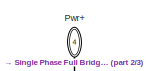
[diagram: Three Phase Driver Model with 3 shunt current measurement - part 1/3, top left region]
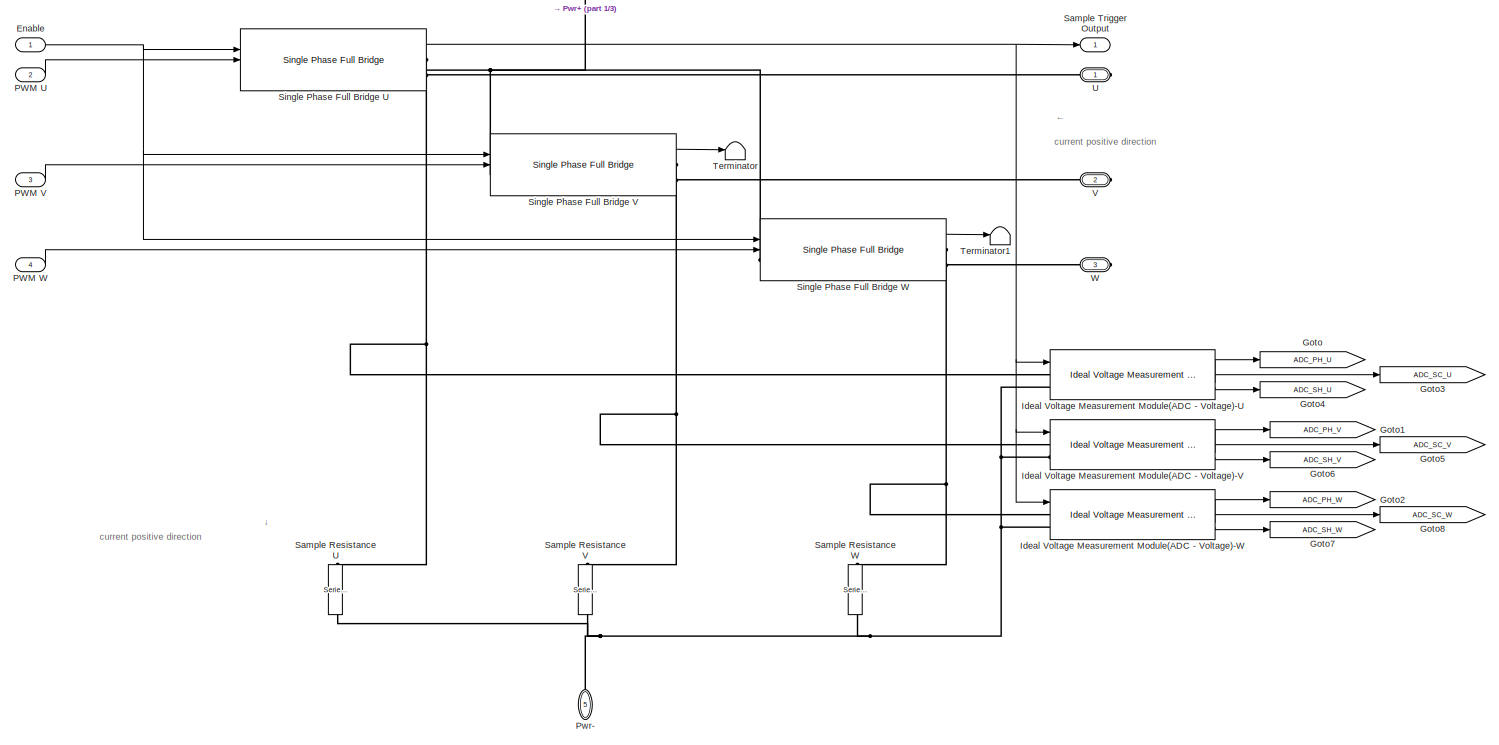
[diagram: Three Phase Driver Model with 3 shunt current measurement - part 2/3, most of the canvas]
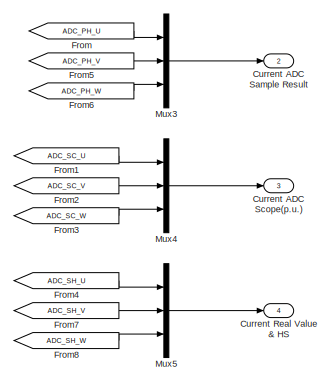
[diagram: Three Phase Driver Model with 3 shunt current measurement - part 3/3, middle right region]
BLOCK [SubSystem] Three Phase Driver Model with 3 shunt current measurement
  PortSchema = {"entries":[{"content":{"sides":[{"content":{"connectorIds":["In1","In2","In3","In4"]},"type":"ConnectorPlacement.EquallySpacedRectSide","uuid":"3f4c86ad-0582-4f47-8583-a8af9a7f9adc"},{"content":{"connectorIds":["Out1","RConn1","RConn2","RConn3"],"side":"RIGHT"},"type":"ConnectorPlacement.EquallySpacedRectSide","uuid":"ae91f325-3014-4188-9063-296f4d5623fa"},{"content":{"connectorIds":["Out2","Out3...<+466ch>
BLOCK [Outport] Three Phase Driver Model with 3 shunt current measurement/Current ADC Sample Result
  Port = 2
BLOCK [Outport] Three Phase Driver Model with 3 shunt current measurement/Current ADC Scope(p.u.)
  Port = 3
BLOCK [Outport] Three Phase Driver Model with 3 shunt current measurement/Current Real Value & HS
  Port = 4
BLOCK [Inport] Three Phase Driver Model with 3 shunt current measurement/Enable
BLOCK [From] Three Phase Driver Model with 3 shunt current measurement/From
  GotoTag = ADC_PH_U
BLOCK [From] Three Phase Driver Model with 3 shunt current measurement/From1
  GotoTag = ADC_SC_U
BLOCK [From] Three Phase Driver Model with 3 shunt current measurement/From2
  GotoTag = ADC_SC_V
BLOCK [From] Three Phase Driver Model with 3 shunt current measurement/From3
  GotoTag = ADC_SC_W
BLOCK [From] Three Phase Driver Model with 3 shunt current measurement/From4
  GotoTag = ADC_SH_U
BLOCK [From] Three Phase Driver Model with 3 shunt current measurement/From5
  GotoTag = ADC_PH_V
BLOCK [From] Three Phase Driver Model with 3 shunt current measurement/From6
  GotoTag = ADC_PH_W
BLOCK [From] Three Phase Driver Model with 3 shunt current measurement/From7
  GotoTag = ADC_SH_V
BLOCK [From] Three Phase Driver Model with 3 shunt current measurement/From8
  GotoTag = ADC_SH_W
BLOCK [Goto] Three Phase Driver Model with 3 shunt current measurement/Goto
  GotoTag = ADC_PH_U
BLOCK [Goto] Three Phase Driver Model with 3 shunt current measurement/Goto1
  GotoTag = ADC_PH_V
BLOCK [Goto] Three Phase Driver Model with 3 shunt current measurement/Goto2
  GotoTag = ADC_PH_W
BLOCK [Goto] Three Phase Driver Model with 3 shunt current measurement/Goto3
  GotoTag = ADC_SC_U
BLOCK [Goto] Three Phase Driver Model with 3 shunt current measurement/Goto4
  GotoTag = ADC_SH_U
BLOCK [Goto] Three Phase Driver Model with 3 shunt current measurement/Goto5
  GotoTag = ADC_SC_V
BLOCK [Goto] Three Phase Driver Model with 3 shunt current measurement/Goto6
  GotoTag = ADC_SH_V
BLOCK [Goto] Three Phase Driver Model with 3 shunt current measurement/Goto7
  GotoTag = ADC_SH_W
BLOCK [Goto] Three Phase Driver Model with 3 shunt current measurement/Goto8
  GotoTag = ADC_SC_W
BLOCK [Reference] Three Phase Driver Model with 3 shunt current measurement/Ideal Voltage Measurement Module(ADC - Voltage)-U  REF=$bdroot/Ideal Voltage Measurement Module(ADC - Voltage)
  SourceBlock = $bdroot/Ideal Voltage Measurement Module(ADC - Voltage)
BLOCK [Reference] Three Phase Driver Model with 3 shunt current measurement/Ideal Voltage Measurement Module(ADC - Voltage)-V  REF=$bdroot/Ideal Voltage Measurement Module(ADC - Voltage)
  SourceBlock = $bdroot/Ideal Voltage Measurement Module(ADC - Voltage)
BLOCK [Reference] Three Phase Driver Model with 3 shunt current measurement/Ideal Voltage Measurement Module(ADC - Voltage)-W  REF=$bdroot/Ideal Voltage Measurement Module(ADC - Voltage)
  SourceBlock = $bdroot/Ideal Voltage Measurement Module(ADC - Voltage)
BLOCK [Mux] Three Phase Driver Model with 3 shunt current measurement/Mux3
  DisplayOption = bar
  Inputs = 3
BLOCK [Mux] Three Phase Driver Model with 3 shunt current measurement/Mux4
  DisplayOption = bar
  Inputs = 3
BLOCK [Mux] Three Phase Driver Model with 3 shunt current measurement/Mux5
  DisplayOption = bar
  Inputs = 3
BLOCK [Inport] Three Phase Driver Model with 3 shunt current measurement/PWM U
  Port = 2
BLOCK [Inport] Three Phase Driver Model with 3 shunt current measurement/PWM V
  Port = 3
BLOCK [Inport] Three Phase Driver Model with 3 shunt current measurement/PWM W
  Port = 4
BLOCK [PMIOPort] Three Phase Driver Model with 3 shunt current measurement/Pwr+
  NameLocation = left
  Port = 4
  Side = Right
BLOCK [PMIOPort] Three Phase Driver Model with 3 shunt current measurement/Pwr-
  NameLocation = right
  Port = 5
  Side = Right
BLOCK [Reference] Three Phase Driver Model with 3 shunt current measurement/Sample Resistance U  REF=spsSeriesRLCBranchLib/Series RLC Branch
  LibrarySourceBlock = sps_lib/Passives/Series RLC Branch
  NameLocation = left
  SourceBlock = spsSeriesRLCBranchLib/Series RLC Branch
  SourceType = Series RLC Branch
BLOCK [Reference] Three Phase Driver Model with 3 shunt current measurement/Sample Resistance V  REF=spsSeriesRLCBranchLib/Series RLC Branch
  LibrarySourceBlock = sps_lib/Passives/Series RLC Branch
  NameLocation = left
  SourceBlock = spsSeriesRLCBranchLib/Series RLC Branch
  SourceType = Series RLC Branch
BLOCK [Reference] Three Phase Driver Model with 3 shunt current measurement/Sample Resistance W  REF=spsSeriesRLCBranchLib/Series RLC Branch
  LibrarySourceBlock = sps_lib/Passives/Series RLC Branch
  NameLocation = left
  SourceBlock = spsSeriesRLCBranchLib/Series RLC Branch
  SourceType = Series RLC Branch
BLOCK [Outport] Three Phase Driver Model with 3 shunt current measurement/Sample Trigger Output
BLOCK [Reference] Three Phase Driver Model with 3 shunt current measurement/Single Phase Full Bridge U  REF=$bdroot/Single Phase Full Bridge
  SourceBlock = $bdroot/Single Phase Full Bridge
BLOCK [Reference] Three Phase Driver Model with 3 shunt current measurement/Single Phase Full Bridge V  REF=$bdroot/Single Phase Full Bridge
  SourceBlock = $bdroot/Single Phase Full Bridge
BLOCK [Reference] Three Phase Driver Model with 3 shunt current measurement/Single Phase Full Bridge W  REF=$bdroot/Single Phase Full Bridge
  SourceBlock = $bdroot/Single Phase Full Bridge
BLOCK [Terminator] Three Phase Driver Model with 3 shunt current measurement/Terminator
BLOCK [Terminator] Three Phase Driver Model with 3 shunt current measurement/Terminator1
BLOCK [PMIOPort] Three Phase Driver Model with 3 shunt current measurement/U
  Side = Right
BLOCK [PMIOPort] Three Phase Driver Model with 3 shunt current measurement/V
  Port = 2
  Side = Right
BLOCK [PMIOPort] Three Phase Driver Model with 3 shunt current measurement/W
  Port = 3
  Side = Right
BLOCK [Inport] Three Phase Driver Model/Enable
BLOCK [Inport] Three Phase Driver Model/PWM U
  Port = 2
BLOCK [Inport] Three Phase Driver Model/PWM V
  Port = 3
BLOCK [Inport] Three Phase Driver Model/PWM W
  Port = 4
BLOCK [PMIOPort] Three Phase Driver Model/Pwr+
  NameLocation = left
  Port = 4
  Side = Right
BLOCK [PMIOPort] Three Phase Driver Model/Pwr-
  NameLocation = right
  Port = 5
  Side = Right
BLOCK [Outport] Three Phase Driver Model/Sample Trigger Output
BLOCK [Reference] Three Phase Driver Model/Single Phase Full Bridge U  REF=$bdroot/Single Phase Full Bridge
  SourceBlock = $bdroot/Single Phase Full Bridge
BLOCK [Reference] Three Phase Driver Model/Single Phase Full Bridge V  REF=$bdroot/Single Phase Full Bridge
  SourceBlock = $bdroot/Single Phase Full Bridge
BLOCK [Reference] Three Phase Driver Model/Single Phase Full Bridge W  REF=$bdroot/Single Phase Full Bridge
  SourceBlock = $bdroot/Single Phase Full Bridge
BLOCK [Terminator] Three Phase Driver Model/Terminator
BLOCK [Terminator] Three Phase Driver Model/Terminator1
BLOCK [PMIOPort] Three Phase Driver Model/U
  Side = Right
BLOCK [PMIOPort] Three Phase Driver Model/V
  Port = 2
  Side = Right
BLOCK [PMIOPort] Three Phase Driver Model/W
  Port = 3
  Side = Right
BLOCK [SubSystem] Three Phases Voltage (ph-gnd) Measurement with Filter
  PortSchema = {"entries":[{"content":{"sides":[{"content":{"connectorIds":["In1"]},"type":"ConnectorPlacement.EquallySpacedRectSide","uuid":"ae4f4612-c092-4fa0-8a43-5c9e823110e3"},{"content":{"connectorIds":["Out1","Out2","Out3"],"side":"RIGHT"},"type":"ConnectorPlacement.EquallySpacedRectSide","uuid":"6db15ef0-d33a-4775-b4e6-14a566796673"},{"content":{"connectorIds":["LConn1","LConn2","LConn3"],"side":"TOP"},"...<+280ch>
BLOCK [From] Three Phases Voltage (ph-gnd) Measurement with Filter/From10
  GotoTag = Ph_B_pu
BLOCK [From] Three Phases Voltage (ph-gnd) Measurement with Filter/From11
  GotoTag = Ph_C_pu
BLOCK [From] Three Phases Voltage (ph-gnd) Measurement with Filter/From12
  GotoTag = Ph_A_HS
BLOCK [From] Three Phases Voltage (ph-gnd) Measurement with Filter/From13
  GotoTag = Ph_B_HS
BLOCK [From] Three Phases Voltage (ph-gnd) Measurement with Filter/From14
  GotoTag = Ph_C_HS
BLOCK [From] Three Phases Voltage (ph-gnd) Measurement with Filter/From6
  GotoTag = PhaseA_voltage
BLOCK [From] Three Phases Voltage (ph-gnd) Measurement with Filter/From7
  GotoTag = PhaseB_voltage
BLOCK [From] Three Phases Voltage (ph-gnd) Measurement with Filter/From8
  GotoTag = PhaseC_voltage
BLOCK [From] Three Phases Voltage (ph-gnd) Measurement with Filter/From9
  GotoTag = Ph_A_pu
BLOCK [Goto] Three Phases Voltage (ph-gnd) Measurement with Filter/Goto10
  GotoTag = PhaseC_voltage
BLOCK [Goto] Three Phases Voltage (ph-gnd) Measurement with Filter/Goto11
  GotoTag = Ph_C_pu
BLOCK [Goto] Three Phases Voltage (ph-gnd) Measurement with Filter/Goto12
  GotoTag = Ph_C_HS
BLOCK [Goto] Three Phases Voltage (ph-gnd) Measurement with Filter/Goto4
  GotoTag = PhaseA_voltage
BLOCK [Goto] Three Phases Voltage (ph-gnd) Measurement with Filter/Goto5
  GotoTag = Ph_A_pu
BLOCK [Goto] Three Phases Voltage (ph-gnd) Measurement with Filter/Goto6
  GotoTag = Ph_A_HS
BLOCK [Goto] Three Phases Voltage (ph-gnd) Measurement with Filter/Goto7
  GotoTag = PhaseB_voltage
BLOCK [Goto] Three Phases Voltage (ph-gnd) Measurement with Filter/Goto8
  GotoTag = Ph_B_pu
BLOCK [Goto] Three Phases Voltage (ph-gnd) Measurement with Filter/Goto9
  GotoTag = Ph_B_HS
BLOCK [Reference] Three Phases Voltage (ph-gnd) Measurement with Filter/Ground2  REF=spsGroundLib/Ground
  LibrarySourceBlock = sps_lib/Utilities/Ground
  NameLocation = right
  SourceBlock = spsGroundLib/Ground
  SourceType = Ground
BLOCK [Reference] Three Phases Voltage (ph-gnd) Measurement with Filter/Ideal Voltage Measurement with filter Module(ADC - Voltage)-U  REF=$bdroot/Ideal Voltage Measurement with filter Module(ADC - Voltage)
  SourceBlock = $bdroot/Ideal Voltage Measurement with filter Module(ADC - Voltage)
BLOCK [Reference] Three Phases Voltage (ph-gnd) Measurement with Filter/Ideal Voltage Measurement with filter Module(ADC - Voltage)-V  REF=$bdroot/Ideal Voltage Measurement with filter Module(ADC - Voltage)
  SourceBlock = $bdroot/Ideal Voltage Measurement with filter Module(ADC - Voltage)
BLOCK [Reference] Three Phases Voltage (ph-gnd) Measurement with Filter/Ideal Voltage Measurement with filter Module(ADC - Voltage)-W  REF=$bdroot/Ideal Voltage Measurement with filter Module(ADC - Voltage)
  SourceBlock = $bdroot/Ideal Voltage Measurement with filter Module(ADC - Voltage)
BLOCK [Mux] Three Phases Voltage (ph-gnd) Measurement with Filter/Mux3
  DisplayOption = bar
  Inputs = 3
BLOCK [Mux] Three Phases Voltage (ph-gnd) Measurement with Filter/Mux4
  DisplayOption = bar
  Inputs = 3
BLOCK [Mux] Three Phases Voltage (ph-gnd) Measurement with Filter/Mux5
  DisplayOption = bar
  Inputs = 3
BLOCK [Inport] Three Phases Voltage (ph-gnd) Measurement with Filter/Sample Trigger
BLOCK [PMIOPort] Three Phases Voltage (ph-gnd) Measurement with Filter/U
  Side = Left
BLOCK [PMIOPort] Three Phases Voltage (ph-gnd) Measurement with Filter/V
  Port = 2
  Side = Left
BLOCK [Outport] Three Phases Voltage (ph-gnd) Measurement with Filter/Voltage ADC Sample Result
BLOCK [Outport] Three Phases Voltage (ph-gnd) Measurement with Filter/Voltage ADC Scope(p.u.)
  Port = 2
BLOCK [Outport] Three Phases Voltage (ph-gnd) Measurement with Filter/Voltage Real Value & HS
  Port = 3
BLOCK [PMIOPort] Three Phases Voltage (ph-gnd) Measurement with Filter/W
  Port = 3
  Side = Left
BLOCK [SubSystem] Three Phases Voltage (ph-ph) Measurement with Filter
  AncestorBlock = peripheral_utilities/Three Phases Voltage (ph-gnd) Measurement with Filter
  PortSchema = {"entries":[{"content":{"sides":[{"content":{"connectorIds":["In1"]},"type":"ConnectorPlacement.EquallySpacedRectSide","uuid":"ae4f4612-c092-4fa0-8a43-5c9e823110e3"},{"content":{"connectorIds":["Out1","Out2","Out3"],"side":"RIGHT"},"type":"ConnectorPlacement.EquallySpacedRectSide","uuid":"6db15ef0-d33a-4775-b4e6-14a566796673"},{"content":{"connectorIds":["LConn1","LConn2","LConn3"],"side":"TOP"},"...<+280ch>
BLOCK [From] Three Phases Voltage (ph-ph) Measurement with Filter/From
  GotoTag = PhaseUV_voltage
BLOCK [From] Three Phases Voltage (ph-ph) Measurement with Filter/From1
  GotoTag = PhaseVW_voltage
BLOCK [From] Three Phases Voltage (ph-ph) Measurement with Filter/From2
  GotoTag = PhaseWU_voltage
BLOCK [From] Three Phases Voltage (ph-ph) Measurement with Filter/From3
  GotoTag = Ph_UV_pu
BLOCK [From] Three Phases Voltage (ph-ph) Measurement with Filter/From4
  GotoTag = Ph_VW_pu
BLOCK [From] Three Phases Voltage (ph-ph) Measurement with Filter/From5
  GotoTag = Ph_WU_pu
BLOCK [From] Three Phases Voltage (ph-ph) Measurement with Filter/From6
  GotoTag = Ph_UV_HS
BLOCK [From] Three Phases Voltage (ph-ph) Measurement with Filter/From7
  GotoTag = Ph_VW_HS
BLOCK [From] Three Phases Voltage (ph-ph) Measurement with Filter/From8
  GotoTag = Ph_WU_HS
BLOCK [Goto] Three Phases Voltage (ph-ph) Measurement with Filter/Goto10
  GotoTag = PhaseWU_voltage
BLOCK [Goto] Three Phases Voltage (ph-ph) Measurement with Filter/Goto11
  GotoTag = Ph_WU_pu
BLOCK [Goto] Three Phases Voltage (ph-ph) Measurement with Filter/Goto12
  GotoTag = Ph_WU_HS
BLOCK [Goto] Three Phases Voltage (ph-ph) Measurement with Filter/Goto4
  GotoTag = PhaseUV_voltage
BLOCK [Goto] Three Phases Voltage (ph-ph) Measurement with Filter/Goto5
  GotoTag = Ph_UV_pu
BLOCK [Goto] Three Phases Voltage (ph-ph) Measurement with Filter/Goto6
  GotoTag = Ph_UV_HS
BLOCK [Goto] Three Phases Voltage (ph-ph) Measurement with Filter/Goto7
  GotoTag = PhaseVW_voltage
BLOCK [Goto] Three Phases Voltage (ph-ph) Measurement with Filter/Goto8
  GotoTag = Ph_VW_pu
BLOCK [Goto] Three Phases Voltage (ph-ph) Measurement with Filter/Goto9
  GotoTag = Ph_VW_HS
BLOCK [Reference] Three Phases Voltage (ph-ph) Measurement with Filter/Ideal Voltage Measurement with filter Module(ADC - Voltage)-U  REF=peripheral_utilities/Ideal Voltage Measurement with filter Module(ADC - Voltage)
  SourceBlock = peripheral_utilities/Ideal Voltage Measurement with filter Module(ADC - Voltage)
BLOCK [Reference] Three Phases Voltage (ph-ph) Measurement with Filter/Ideal Voltage Measurement with filter Module(ADC - Voltage)-V  REF=peripheral_utilities/Ideal Voltage Measurement with filter Module(ADC - Voltage)
  SourceBlock = peripheral_utilities/Ideal Voltage Measurement with filter Module(ADC - Voltage)
BLOCK [Reference] Three Phases Voltage (ph-ph) Measurement with Filter/Ideal Voltage Measurement with filter Module(ADC - Voltage)-W  REF=peripheral_utilities/Ideal Voltage Measurement with filter Module(ADC - Voltage)
  SourceBlock = peripheral_utilities/Ideal Voltage Measurement with filter Module(ADC - Voltage)
BLOCK [Mux] Three Phases Voltage (ph-ph) Measurement with Filter/Mux3
  DisplayOption = bar
  Inputs = 3
BLOCK [Mux] Three Phases Voltage (ph-ph) Measurement with Filter/Mux4
  DisplayOption = bar
  Inputs = 3
BLOCK [Mux] Three Phases Voltage (ph-ph) Measurement with Filter/Mux5
  DisplayOption = bar
  Inputs = 3
BLOCK [Inport] Three Phases Voltage (ph-ph) Measurement with Filter/Sample Trigger
BLOCK [PMIOPort] Three Phases Voltage (ph-ph) Measurement with Filter/U
  Side = Left
BLOCK [PMIOPort] Three Phases Voltage (ph-ph) Measurement with Filter/V
  Port = 2
  Side = Left
BLOCK [Outport] Three Phases Voltage (ph-ph) Measurement with Filter/Voltage ADC Sample Result
BLOCK [Outport] Three Phases Voltage (ph-ph) Measurement with Filter/Voltage ADC Scope(p.u.)
  Port = 2
BLOCK [Outport] Three Phases Voltage (ph-ph) Measurement with Filter/Voltage Real Value & HS
  Port = 3
BLOCK [PMIOPort] Three Phases Voltage (ph-ph) Measurement with Filter/W
  Port = 3
  Side = Left
BLOCK [SubSystem] Triangle PWM modulation (with deadband)
BLOCK [Sum] Triangle PWM modulation (with deadband)/Add
  IconShape = rectangular
BLOCK [Constant] Triangle PWM modulation (with deadband)/Constant
  Value = phase_shift
BLOCK [Constant] Triangle PWM modulation (with deadband)/Constant1
  Value = CMP_MAX*2
BLOCK [Constant] Triangle PWM modulation (with deadband)/Constant2
BLOCK [Constant] Triangle PWM modulation (with deadband)/Constant3
  Value = Deadband_Upper
BLOCK [Constant] Triangle PWM modulation (with deadband)/Constant4
  Value = Deadband_Lower
BLOCK [Constant] Triangle PWM modulation (with deadband)/Constant5
  Value = CMP_MAX*2
BLOCK [DataTypeConversion] Triangle PWM modulation (with deadband)/Data Type Conversion4
  OutDataTypeStr = double
  RndMeth = Floor
  SaturateOnIntegerOverflow = off
BLOCK [Inport] Triangle PWM modulation (with deadband)/Enable
BLOCK [Gain] Triangle PWM modulation (with deadband)/Gain
  Gain = 1/2*pi
BLOCK [Gain] Triangle PWM modulation (with deadband)/Gain2
  Gain = 1/CMP_MAX/2
BLOCK [Gain] Triangle PWM modulation (with deadband)/Gain3
  Gain = 1/CMP_MAX/2
BLOCK [Gain] Triangle PWM modulation (with deadband)/Gain4
  Gain = 1/CMP_MAX/2
BLOCK [Gain] Triangle PWM modulation (with deadband)/Gain5
  Gain = 1/CMP_MAX/2
BLOCK [HitCross] Triangle PWM modulation (with deadband)/Hit Crossing：ADC Sample Trigger Signal
  HitCrossingDirection = rising
  HitCrossingOffset = 0.5
BLOCK [Logic] Triangle PWM modulation (with deadband)/Logical Operator2
  AllPortsSameDT = off
  Operator = OR
  OutDataTypeStr = boolean
BLOCK [Logic] Triangle PWM modulation (with deadband)/Logical Operator3
  AllPortsSameDT = off
  OutDataTypeStr = boolean
BLOCK [Logic] Triangle PWM modulation (with deadband)/Logical Operator4
  AllPortsSameDT = off
  OutDataTypeStr = boolean
BLOCK [Logic] Triangle PWM modulation (with deadband)/Logical Operator5
  AllPortsSameDT = off
  OutDataTypeStr = boolean
BLOCK [Math] Triangle PWM modulation (with deadband)/Mod
  Operator = mod
BLOCK [Inport] Triangle PWM modulation (with deadband)/PWM CMP
  Port = 2
BLOCK [RelationalOperator] Triangle PWM modulation (with deadband)/PWM Generator1
  InputSameDT = off
  OutDataTypeStr = boolean
BLOCK [RelationalOperator] Triangle PWM modulation (with deadband)/PWM Generator2
  InputSameDT = off
  Operator = <=
  OutDataTypeStr = boolean
BLOCK [RelationalOperator] Triangle PWM modulation (with deadband)/PWM Generator3
  InputSameDT = off
  OutDataTypeStr = boolean
BLOCK [RelationalOperator] Triangle PWM modulation (with deadband)/PWM Generator4
  InputSameDT = off
  Operator = <=
  OutDataTypeStr = boolean
BLOCK [Outport] Triangle PWM modulation (with deadband)/PWM OUTPUT
BLOCK [Outport] Triangle PWM modulation (with deadband)/PWM OUTPUT N
  Port = 2
BLOCK [Reference] Triangle PWM modulation (with deadband)/Repeating Sequence2  REF=simulink/Sources/Repeating
Sequence
  SourceBlock = simulink/Sources/Repeating\nSequence
  SourceType = Repeating table
BLOCK [Outport] Triangle PWM modulation (with deadband)/Sample Trigger Output
  Port = 3
BLOCK [Saturate] Triangle PWM modulation (with deadband)/Saturation1
  LowerLimit = 0
  UpperLimit = 1
BLOCK [Saturate] Triangle PWM modulation (with deadband)/Saturation2
  LowerLimit = 0
  UpperLimit = 1
BLOCK [Saturate] Triangle PWM modulation (with deadband)/Saturation3
  LowerLimit = 0
  UpperLimit = 1
BLOCK [Saturate] Triangle PWM modulation (with deadband)/Saturation4
  LowerLimit = 0
  UpperLimit = 1
BLOCK [Sum] Triangle PWM modulation (with deadband)/Subtract
  IconShape = rectangular
  Inputs = -++
BLOCK [Sum] Triangle PWM modulation (with deadband)/Subtract1
  IconShape = rectangular
BLOCK [Sum] Triangle PWM modulation (with deadband)/Subtract2
  IconShape = rectangular
  Inputs = -+
ANNOTATION (root): Virtual Peripheral Utilities
ANNOTATION (root): GMP (General Motor Platform) Simulink Toolkits
ANNOTATION (root): Javnson 2024.08.29
ANNOTATION Ideal Absolute Position Encoder Module (multi cycle, Sawtooth input): 2024.08.30
ANNOTATION Ideal Absolute Position Encoder Module (multi cycle, Sawtooth input): JavnSon Ideal Multi-turn Absolute Encoder peripheral
ANNOTATION Ideal Absolute Position Encoder Module (multi cycle, ramp input): 2024.08.30
ANNOTATION Ideal Absolute Position Encoder Module (multi cycle, ramp input): JavnSon Ideal Multi-turn Absolute Encoder peripheral
ANNOTATION Ideal Absolute Position Encoder Module (single cycle, Sawtooth input): 2024.08.30
ANNOTATION Ideal Absolute Position Encoder Module (single cycle, Sawtooth input): JavnSon Ideal Absolute Encoder peripheral
ANNOTATION Ideal Current Measurement Module（ADC - Current）: 2024.08.28
ANNOTATION Ideal Current Measurement Module（ADC - Current）: JavnSon Current Ideal Measurement(ADC module)
ANNOTATION Ideal QEP Encoder Module（Sawtooth input, ramp input）: 2024.08.30
ANNOTATION Ideal QEP Encoder Module（Sawtooth input, ramp input）: JavnSon Ideal QEP peripheral
ANNOTATION Ideal QEP Encoder Module（Sawtooth input）: 2024.08.30
ANNOTATION Ideal QEP Encoder Module（Sawtooth input）: JavnSon Ideal QEP peripheral
ANNOTATION Ideal Voltage Measurement Module(ADC - Voltage): 2024.08.28
ANNOTATION Ideal Voltage Measurement Module(ADC - Voltage): JavnSon Voltage Ideal Measurement(ADC module)
ANNOTATION Ideal Voltage Measurement with filter Module(ADC - Voltage): 2024.08.28
ANNOTATION Ideal Voltage Measurement with filter Module(ADC - Voltage): JavnSon Voltage Ideal Measurement(ADC module)
ANNOTATION Three Phase Bridge Ideal Current Measurement: →
ANNOTATION Three Phase Bridge Ideal Current Measurement: GMP (General Motor Platform) Simulink Toolkits
ANNOTATION Three Phase Bridge Ideal Current Measurement: Javnson 2024.08.29
ANNOTATION Three Phase Bridge Ideal Current Measurement: current positive direction
ANNOTATION Three Phase Driver Model: GMP (General Motor Platform) Simulink Toolkits
ANNOTATION Three Phase Driver Model: Javnson 2024.08.29
ANNOTATION Three Phase Driver Model (Universal): 3-ph Current Measurement
ANNOTATION Three Phase Driver Model (Universal): 3-ph Voltage Measurement
ANNOTATION Three Phase Driver Model (Universal): →
ANNOTATION Three Phase Driver Model (Universal): ↓
ANNOTATION Three Phase Driver Model (Universal): DC Bus Voltage Measurement
ANNOTATION Three Phase Driver Model (Universal): current positive direction
ANNOTATION Three Phase Driver Model (Universal): voltage positive direction
ANNOTATION Three Phase Driver Model (Universal)/3-ph Voltage measurement: GMP (General Motor Platform) Simulink Toolkits
ANNOTATION Three Phase Driver Model (Universal)/3-ph Voltage measurement: Javnson 2024.08.29
ANNOTATION Three Phase Driver Model with 3 shunt current measurement: ←
ANNOTATION Three Phase Driver Model with 3 shunt current measurement: ↓
ANNOTATION Three Phase Driver Model with 3 shunt current measurement: current positive direction
ANNOTATION Three Phases Voltage (ph-gnd) Measurement with Filter: GMP (General Motor Platform) Simulink Toolkits
ANNOTATION Three Phases Voltage (ph-gnd) Measurement with Filter: Javnson 2024.08.29
ANNOTATION Three Phases Voltage (ph-ph) Measurement with Filter: GMP (General Motor Platform) Simulink Toolkits
ANNOTATION Three Phases Voltage (ph-ph) Measurement with Filter: Javnson 2024.08.29
ANNOTATION Triangle PWM modulation (with deadband): 2024.08.28
ANNOTATION Triangle PWM modulation (with deadband): JavnSon PWM Modulation Module
LINE Ideal Absolute Position Encoder Module (multi cycle, Sawtooth input)/AND1:1 -> Ideal Absolute Position Encoder Module (multi cycle, Sawtooth input)/Switch:2
LINE Ideal Absolute Position Encoder Module (multi cycle, Sawtooth input)/AND:1 -> Ideal Absolute Position Encoder Module (multi cycle, Sawtooth input)/Switch1:2
NET Ideal Absolute Position Encoder Module (multi cycle, Sawtooth input)/Add:1 -> Ideal Absolute Position Encoder Module (multi cycle, Sawtooth input)/Data Type Conversion1:1, Ideal Absolute Position Encoder Module (multi cycle, Sawtooth input)/Memory:1
LINE Ideal Absolute Position Encoder Module (multi cycle, Sawtooth input)/Compare To Constant1:1 -> Ideal Absolute Position Encoder Module (multi cycle, Sawtooth input)/AND1:1
LINE Ideal Absolute Position Encoder Module (multi cycle, Sawtooth input)/Compare To Constant:1 -> Ideal Absolute Position Encoder Module (multi cycle, Sawtooth input)/AND:2
NET Ideal Absolute Position Encoder Module (multi cycle, Sawtooth input)/Constant1:1 -> Ideal Absolute Position Encoder Module (multi cycle, Sawtooth input)/Switch1:1, Ideal Absolute Position Encoder Module (multi cycle, Sawtooth input)/Switch:1
NET Ideal Absolute Position Encoder Module (multi cycle, Sawtooth input)/Constant:1 -> Ideal Absolute Position Encoder Module (multi cycle, Sawtooth input)/Switch1:3, Ideal Absolute Position Encoder Module (multi cycle, Sawtooth input)/Switch:3
LINE Ideal Absolute Position Encoder Module (multi cycle, Sawtooth input)/Data Type Conversion1:1 -> Ideal Absolute Position Encoder Module (multi cycle, Sawtooth input)/Turn Count:1
LINE Ideal Absolute Position Encoder Module (multi cycle, Sawtooth input)/Data Type Conversion:1 -> Ideal Absolute Position Encoder Module (multi cycle, Sawtooth input)/Encoder Output:1
NET Ideal Absolute Position Encoder Module (multi cycle, Sawtooth input)/Gain:1 -> Ideal Absolute Position Encoder Module (multi cycle, Sawtooth input)/Compare To Constant1:1, Ideal Absolute Position Encoder Module (multi cycle, Sawtooth input)/Compare To Constant:1, Ideal Absolute Position Encoder Module (multi cycle, Sawtooth input)/Hit Crossing1:1, Ideal Absolute Position Encoder Module (multi cycle, Sawtooth input)/Hit Crossing:1, Ideal Absolute Position Encoder Module (multi cycle, Sawtooth input)/Type Conversion:1
LINE Ideal Absolute Position Encoder Module (multi cycle, Sawtooth input)/Hit Crossing1:1 -> Ideal Absolute Position Encoder Module (multi cycle, Sawtooth input)/AND:1
LINE Ideal Absolute Position Encoder Module (multi cycle, Sawtooth input)/Hit Crossing:1 -> Ideal Absolute Position Encoder Module (multi cycle, Sawtooth input)/AND1:2
LINE Ideal Absolute Position Encoder Module (multi cycle, Sawtooth input)/Mech-Rotor angle (rad):1 -> Ideal Absolute Position Encoder Module (multi cycle, Sawtooth input)/Gain:1
LINE Ideal Absolute Position Encoder Module (multi cycle, Sawtooth input)/Memory:1 -> Ideal Absolute Position Encoder Module (multi cycle, Sawtooth input)/Add:2
LINE Ideal Absolute Position Encoder Module (multi cycle, Sawtooth input)/Switch1:1 -> Ideal Absolute Position Encoder Module (multi cycle, Sawtooth input)/Add:3
LINE Ideal Absolute Position Encoder Module (multi cycle, Sawtooth input)/Switch:1 -> Ideal Absolute Position Encoder Module (multi cycle, Sawtooth input)/Add:1
LINE Ideal Absolute Position Encoder Module (multi cycle, Sawtooth input)/Type Conversion:1 -> Ideal Absolute Position Encoder Module (multi cycle, Sawtooth input)/Data Type Conversion:1
LINE Ideal Absolute Position Encoder Module (single cycle, Sawtooth input)/Data Type Conversion:1 -> Ideal Absolute Position Encoder Module (single cycle, Sawtooth input)/Encoder Output:1
LINE Ideal Absolute Position Encoder Module (single cycle, Sawtooth input)/Gain:1 -> Ideal Absolute Position Encoder Module (single cycle, Sawtooth input)/Type Conversion:1
LINE Ideal Absolute Position Encoder Module (single cycle, Sawtooth input)/Mech-Rotor angle (rad):1 -> Ideal Absolute Position Encoder Module (single cycle, Sawtooth input)/Gain:1
LINE Ideal Absolute Position Encoder Module (single cycle, Sawtooth input)/Type Conversion:1 -> Ideal Absolute Position Encoder Module (single cycle, Sawtooth input)/Data Type Conversion:1
LINE Ideal Absolute Position Encoder Module (single cycle, ramp input)/Constant:1 -> Ideal Absolute Position Encoder Module (single cycle, ramp input)/Mod:2
LINE Ideal Absolute Position Encoder Module (single cycle, ramp input)/Data Type Conversion:1 -> Ideal Absolute Position Encoder Module (single cycle, ramp input)/Encoder Output:1
LINE Ideal Absolute Position Encoder Module (single cycle, ramp input)/Elec-Rotor angle (rad):1 -> Ideal Absolute Position Encoder Module (single cycle, ramp input)/Mod:1
LINE Ideal Absolute Position Encoder Module (single cycle, ramp input)/Gain:1 -> Ideal Absolute Position Encoder Module (single cycle, ramp input)/Type Conversion:1
LINE Ideal Absolute Position Encoder Module (single cycle, ramp input)/Mod:1 -> Ideal Absolute Position Encoder Module (single cycle, ramp input)/Gain:1
LINE Ideal Absolute Position Encoder Module (single cycle, ramp input)/Type Conversion:1 -> Ideal Absolute Position Encoder Module (single cycle, ramp input)/Data Type Conversion:1
LINE Ideal Current Measurement Module（ADC - Current）/Add:1 -> Ideal Current Measurement Module（ADC - Current）/Divide:1
LINE Ideal Current Measurement Module（ADC - Current）/Constant4:1 -> Ideal Current Measurement Module（ADC - Current）/Add:1
LINE Ideal Current Measurement Module（ADC - Current）/Constant5:1 -> Ideal Current Measurement Module（ADC - Current）/Divide:2
NET Ideal Current Measurement Module（ADC - Current）/Current Measurement:1 -> Ideal Current Measurement Module（ADC - Current）/Mux:2, Ideal Current Measurement Module（ADC - Current）/Switch:1
LINE Ideal Current Measurement Module（ADC - Current）/Data Type Conversion:1 -> Ideal Current Measurement Module（ADC - Current）/ADC OUT:1
LINE Ideal Current Measurement Module（ADC - Current）/Divide:1 -> Ideal Current Measurement Module（ADC - Current）/Saturation:1
LINE Ideal Current Measurement Module（ADC - Current）/Gain1:1 -> Ideal Current Measurement Module（ADC - Current）/Add:2
LINE Ideal Current Measurement Module（ADC - Current）/Hold:1 -> Ideal Current Measurement Module（ADC - Current）/Switch:3
LINE Ideal Current Measurement Module（ADC - Current）/Mux:1 -> Ideal Current Measurement Module（ADC - Current）/Sample & Hold View:1
LINE Ideal Current Measurement Module（ADC - Current）/Quantization:1 -> Ideal Current Measurement Module（ADC - Current）/Data Type Conversion:1
LINE Ideal Current Measurement Module（ADC - Current）/Sample Trigger:1 -> Ideal Current Measurement Module（ADC - Current）/Sample:1
LINE Ideal Current Measurement Module（ADC - Current）/Sample:1 -> Ideal Current Measurement Module（ADC - Current）/Switch:2
NET Ideal Current Measurement Module（ADC - Current）/Saturation:1 -> Ideal Current Measurement Module（ADC - Current）/Quantization:1, Ideal Current Measurement Module（ADC - Current）/Scope View (p.u.):1
NET Ideal Current Measurement Module（ADC - Current）/Switch:1 -> Ideal Current Measurement Module（ADC - Current）/Gain1:1, Ideal Current Measurement Module（ADC - Current）/Hold:1, Ideal Current Measurement Module（ADC - Current）/Mux:1
LINE Ideal QEP Encoder Module（Sawtooth input）/Data Type Conversion:1 -> Ideal QEP Encoder Module（Sawtooth input）/Encoder Output:1
NET Ideal QEP Encoder Module（Sawtooth input）/Gain:1 -> Ideal QEP Encoder Module（Sawtooth input）/Hit Crossing1:1, Ideal QEP Encoder Module（Sawtooth input）/Hit Crossing:1, Ideal QEP Encoder Module（Sawtooth input）/Type Conversion:1
LINE Ideal QEP Encoder Module（Sawtooth input）/Hit Crossing1:1 -> Ideal QEP Encoder Module（Sawtooth input）/OR:2
LINE Ideal QEP Encoder Module（Sawtooth input）/Hit Crossing:1 -> Ideal QEP Encoder Module（Sawtooth input）/OR:1
LINE Ideal QEP Encoder Module（Sawtooth input）/Mech-Rotor angle (rad):1 -> Ideal QEP Encoder Module（Sawtooth input）/Gain:1
LINE Ideal QEP Encoder Module（Sawtooth input）/OR:1 -> Ideal QEP Encoder Module（Sawtooth input）/Encoder Clear Event:1
LINE Ideal QEP Encoder Module（Sawtooth input）/Type Conversion:1 -> Ideal QEP Encoder Module（Sawtooth input）/Data Type Conversion:1
LINE Ideal Voltage Measurement Module(ADC - Voltage)/Add:1 -> Ideal Voltage Measurement Module(ADC - Voltage)/Divide:1
LINE Ideal Voltage Measurement Module(ADC - Voltage)/Constant4:1 -> Ideal Voltage Measurement Module(ADC - Voltage)/Add:1
LINE Ideal Voltage Measurement Module(ADC - Voltage)/Constant5:1 -> Ideal Voltage Measurement Module(ADC - Voltage)/Divide:2
LINE Ideal Voltage Measurement Module(ADC - Voltage)/Data Type Conversion:1 -> Ideal Voltage Measurement Module(ADC - Voltage)/ADC OUT:1
LINE Ideal Voltage Measurement Module(ADC - Voltage)/Divide:1 -> Ideal Voltage Measurement Module(ADC - Voltage)/Saturation:1
LINE Ideal Voltage Measurement Module(ADC - Voltage)/Gain1:1 -> Ideal Voltage Measurement Module(ADC - Voltage)/Add:2
LINE Ideal Voltage Measurement Module(ADC - Voltage)/Hold:1 -> Ideal Voltage Measurement Module(ADC - Voltage)/Switch:3
LINE Ideal Voltage Measurement Module(ADC - Voltage)/Mux1:1 -> Ideal Voltage Measurement Module(ADC - Voltage)/Sample & Hold View:1
LINE Ideal Voltage Measurement Module(ADC - Voltage)/Quantization:1 -> Ideal Voltage Measurement Module(ADC - Voltage)/Data Type Conversion:1
LINE Ideal Voltage Measurement Module(ADC - Voltage)/Sample Trigger:1 -> Ideal Voltage Measurement Module(ADC - Voltage)/Sample:1
LINE Ideal Voltage Measurement Module(ADC - Voltage)/Sample:1 -> Ideal Voltage Measurement Module(ADC - Voltage)/Switch:2
NET Ideal Voltage Measurement Module(ADC - Voltage)/Saturation:1 -> Ideal Voltage Measurement Module(ADC - Voltage)/Quantization:1, Ideal Voltage Measurement Module(ADC - Voltage)/Scope View (p.u.):1
NET Ideal Voltage Measurement Module(ADC - Voltage)/Switch:1 -> Ideal Voltage Measurement Module(ADC - Voltage)/Gain1:1, Ideal Voltage Measurement Module(ADC - Voltage)/Hold:1, Ideal Voltage Measurement Module(ADC - Voltage)/Mux1:1
NET Ideal Voltage Measurement Module(ADC - Voltage)/Voltage Measurement:1 -> Ideal Voltage Measurement Module(ADC - Voltage)/Mux1:2, Ideal Voltage Measurement Module(ADC - Voltage)/Switch:1
LINE Ideal Voltage Measurement with filter Module(ADC - Voltage)/Add:1 -> Ideal Voltage Measurement with filter Module(ADC - Voltage)/Divide:1
LINE Ideal Voltage Measurement with filter Module(ADC - Voltage)/Constant4:1 -> Ideal Voltage Measurement with filter Module(ADC - Voltage)/Add:1
LINE Ideal Voltage Measurement with filter Module(ADC - Voltage)/Constant5:1 -> Ideal Voltage Measurement with filter Module(ADC - Voltage)/Divide:2
LINE Ideal Voltage Measurement with filter Module(ADC - Voltage)/Data Type Conversion:1 -> Ideal Voltage Measurement with filter Module(ADC - Voltage)/ADC OUT:1
LINE Ideal Voltage Measurement with filter Module(ADC - Voltage)/Divide:1 -> Ideal Voltage Measurement with filter Module(ADC - Voltage)/Saturation:1
LINE Ideal Voltage Measurement with filter Module(ADC - Voltage)/Gain1:1 -> Ideal Voltage Measurement with filter Module(ADC - Voltage)/Add:2
LINE Ideal Voltage Measurement with filter Module(ADC - Voltage)/Hold:1 -> Ideal Voltage Measurement with filter Module(ADC - Voltage)/Switch:3
LINE Ideal Voltage Measurement with filter Module(ADC - Voltage)/Mux1:1 -> Ideal Voltage Measurement with filter Module(ADC - Voltage)/Sample & Hold View:1
LINE Ideal Voltage Measurement with filter Module(ADC - Voltage)/Quantization:1 -> Ideal Voltage Measurement with filter Module(ADC - Voltage)/Data Type Conversion:1
LINE Ideal Voltage Measurement with filter Module(ADC - Voltage)/Sample Trigger:1 -> Ideal Voltage Measurement with filter Module(ADC - Voltage)/Sample:1
LINE Ideal Voltage Measurement with filter Module(ADC - Voltage)/Sample:1 -> Ideal Voltage Measurement with filter Module(ADC - Voltage)/Switch:2
NET Ideal Voltage Measurement with filter Module(ADC - Voltage)/Saturation:1 -> Ideal Voltage Measurement with filter Module(ADC - Voltage)/Quantization:1, Ideal Voltage Measurement with filter Module(ADC - Voltage)/Scope View (p.u.):1
NET Ideal Voltage Measurement with filter Module(ADC - Voltage)/Second-Order Filter:1 -> Ideal Voltage Measurement with filter Module(ADC - Voltage)/Mux1:2, Ideal Voltage Measurement with filter Module(ADC - Voltage)/Switch:1
NET Ideal Voltage Measurement with filter Module(ADC - Voltage)/Switch:1 -> Ideal Voltage Measurement with filter Module(ADC - Voltage)/Gain1:1, Ideal Voltage Measurement with filter Module(ADC - Voltage)/Hold:1, Ideal Voltage Measurement with filter Module(ADC - Voltage)/Mux1:1
LINE Ideal Voltage Measurement with filter Module(ADC - Voltage)/Voltage Measurement:1 -> Ideal Voltage Measurement with filter Module(ADC - Voltage)/Second-Order Filter:1
NET SVPWM Modulation Module/Constant14:1 -> SVPWM Modulation Module/Subsystem2:4, SVPWM Modulation Module/Subsystem:4
LINE SVPWM Modulation Module/Constant15:1 -> SVPWM Modulation Module/Subsystem:3
LINE SVPWM Modulation Module/Data Type Conversion:1 -> SVPWM Modulation Module/Tabc:1
LINE SVPWM Modulation Module/Gain:1 -> SVPWM Modulation Module/Data Type Conversion:1
LINE SVPWM Modulation Module/Mux3:1 -> SVPWM Modulation Module/Saturation:1
LINE SVPWM Modulation Module/Saturation:1 -> SVPWM Modulation Module/Gain:1
LINE SVPWM Modulation Module/Subsystem/Add:1 -> SVPWM Modulation Module/Subsystem/Product5:1
LINE SVPWM Modulation Module/Subsystem/Constant1:1 -> SVPWM Modulation Module/Subsystem/Product2:1
LINE SVPWM Modulation Module/Subsystem/Constant2:1 -> SVPWM Modulation Module/Subsystem/Product3:2
LINE SVPWM Modulation Module/Subsystem/Constant:1 -> SVPWM Modulation Module/Subsystem/Product:1
LINE SVPWM Modulation Module/Subsystem/Math Function:1 -> SVPWM Modulation Module/Subsystem/Product1:1
NET SVPWM Modulation Module/Subsystem/Product1:1 -> SVPWM Modulation Module/Subsystem/Product4:2, SVPWM Modulation Module/Subsystem/Product5:2, SVPWM Modulation Module/Subsystem/Product6:2
NET SVPWM Modulation Module/Subsystem/Product2:1 -> SVPWM Modulation Module/Subsystem/Add:2, SVPWM Modulation Module/Subsystem/Subtract:1
LINE SVPWM Modulation Module/Subsystem/Product3:1 -> SVPWM Modulation Module/Subsystem/Product4:1
LINE SVPWM Modulation Module/Subsystem/Product4:1 -> SVPWM Modulation Module/Subsystem/X:1
LINE SVPWM Modulation Module/Subsystem/Product5:1 -> SVPWM Modulation Module/Subsystem/Y:1
LINE SVPWM Modulation Module/Subsystem/Product6:1 -> SVPWM Modulation Module/Subsystem/Z:1
NET SVPWM Modulation Module/Subsystem/Product:1 -> SVPWM Modulation Module/Subsystem/Add:1, SVPWM Modulation Module/Subsystem/Subtract:2
LINE SVPWM Modulation Module/Subsystem/Subtract:1 -> SVPWM Modulation Module/Subsystem/Product6:1
LINE SVPWM Modulation Module/Subsystem/Ts:1 -> SVPWM Modulation Module/Subsystem/Product1:2
LINE SVPWM Modulation Module/Subsystem/Ualpha:1 -> SVPWM Modulation Module/Subsystem/Product:2
NET SVPWM Modulation Module/Subsystem/Ubeta:1 -> SVPWM Modulation Module/Subsystem/Product2:2, SVPWM Modulation Module/Subsystem/Product3:1
LINE SVPWM Modulation Module/Subsystem/Udc:1 -> SVPWM Modulation Module/Subsystem/Math Function:1
NET SVPWM Modulation Module/Subsystem1/Gain1:1 -> SVPWM Modulation Module/Subsystem1/Multiport Switch1:6, SVPWM Modulation Module/Subsystem1/Multiport Switch:7
NET SVPWM Modulation Module/Subsystem1/Gain2:1 -> SVPWM Modulation Module/Subsystem1/Multiport Switch1:7, SVPWM Modulation Module/Subsystem1/Multiport Switch:4
NET SVPWM Modulation Module/Subsystem1/Gain:1 -> SVPWM Modulation Module/Subsystem1/Multiport Switch1:3, SVPWM Modulation Module/Subsystem1/Multiport Switch:5
LINE SVPWM Modulation Module/Subsystem1/Multiport Switch1:1 -> SVPWM Modulation Module/Subsystem1/T2:1
LINE SVPWM Modulation Module/Subsystem1/Multiport Switch:1 -> SVPWM Modulation Module/Subsystem1/T1:1
NET SVPWM Modulation Module/Subsystem1/N:1 -> SVPWM Modulation Module/Subsystem1/Multiport Switch1:1, SVPWM Modulation Module/Subsystem1/Multiport Switch:1
NET SVPWM Modulation Module/Subsystem1/X:1 -> SVPWM Modulation Module/Subsystem1/Gain:1, SVPWM Modulation Module/Subsystem1/Multiport Switch1:4, SVPWM Modulation Module/Subsystem1/Multiport Switch:6
NET SVPWM Modulation Module/Subsystem1/Y:1 -> SVPWM Modulation Module/Subsystem1/Gain1:1, SVPWM Modulation Module/Subsystem1/Multiport Switch1:2, SVPWM Modulation Module/Subsystem1/Multiport Switch:3
NET SVPWM Modulation Module/Subsystem1/Z:1 -> SVPWM Modulation Module/Subsystem1/Gain2:1, SVPWM Modulation Module/Subsystem1/Multiport Switch1:5, SVPWM Modulation Module/Subsystem1/Multiport Switch:2
LINE SVPWM Modulation Module/Subsystem1:1 -> SVPWM Modulation Module/Subsystem2:2
LINE SVPWM Modulation Module/Subsystem1:2 -> SVPWM Modulation Module/Subsystem2:3
NET SVPWM Modulation Module/Subsystem2/Add1:1 -> SVPWM Modulation Module/Subsystem2/Multiport Switch1:3, SVPWM Modulation Module/Subsystem2/Multiport Switch1:7, SVPWM Modulation Module/Subsystem2/Multiport Switch2:2, SVPWM Modulation Module/Subsystem2/Multiport Switch2:4, SVPWM Modulation Module/Subsystem2/Multiport Switch:5, SVPWM Modulation Module/Subsystem2/Multiport Switch:6
NET SVPWM Modulation Module/Subsystem2/Add:1 -> SVPWM Modulation Module/Subsystem2/Add1:2, SVPWM Modulation Module/Subsystem2/Multiport Switch1:4, SVPWM Modulation Module/Subsystem2/Multiport Switch1:5, SVPWM Modulation Module/Subsystem2/Multiport Switch2:3, SVPWM Modulation Module/Subsystem2/Multiport Switch2:6, SVPWM Modulation Module/Subsystem2/Multiport Switch:2, SVPWM Modulation Module/Subsystem2/Multiport Switch:7
LINE SVPWM Modulation Module/Subsystem2/Constant1:1 -> SVPWM Modulation Module/Subsystem2/Product1:2
LINE SVPWM Modulation Module/Subsystem2/Constant2:1 -> SVPWM Modulation Module/Subsystem2/Product2:2
LINE SVPWM Modulation Module/Subsystem2/Constant:1 -> SVPWM Modulation Module/Subsystem2/Product:2
LINE SVPWM Modulation Module/Subsystem2/Multiport Switch1:1 -> SVPWM Modulation Module/Subsystem2/Tb:1
LINE SVPWM Modulation Module/Subsystem2/Multiport Switch2:1 -> SVPWM Modulation Module/Subsystem2/Tc:1
LINE SVPWM Modulation Module/Subsystem2/Multiport Switch:1 -> SVPWM Modulation Module/Subsystem2/Ta:1
NET SVPWM Modulation Module/Subsystem2/N:1 -> SVPWM Modulation Module/Subsystem2/Multiport Switch1:1, SVPWM Modulation Module/Subsystem2/Multiport Switch2:1, SVPWM Modulation Module/Subsystem2/Multiport Switch:1
LINE SVPWM Modulation Module/Subsystem2/Product1:1 -> SVPWM Modulation Module/Subsystem2/Add1:1
LINE SVPWM Modulation Module/Subsystem2/Product2:1 -> SVPWM Modulation Module/Subsystem2/Add:1
NET SVPWM Modulation Module/Subsystem2/Product:1 -> SVPWM Modulation Module/Subsystem2/Add:2, SVPWM Modulation Module/Subsystem2/Multiport Switch1:2, SVPWM Modulation Module/Subsystem2/Multiport Switch1:6, SVPWM Modulation Module/Subsystem2/Multiport Switch2:5, SVPWM Modulation Module/Subsystem2/Multiport Switch2:7, SVPWM Modulation Module/Subsystem2/Multiport Switch:3, SVPWM Modulation Module/Subsystem2/Multiport Switch:4
LINE SVPWM Modulation Module/Subsystem2/Subtract:1 -> SVPWM Modulation Module/Subsystem2/Product:1
NET SVPWM Modulation Module/Subsystem2/T1:1 -> SVPWM Modulation Module/Subsystem2/Product2:1, SVPWM Modulation Module/Subsystem2/Subtract:1
NET SVPWM Modulation Module/Subsystem2/T2:1 -> SVPWM Modulation Module/Subsystem2/Product1:1, SVPWM Modulation Module/Subsystem2/Subtract:2
LINE SVPWM Modulation Module/Subsystem2/Ts:1 -> SVPWM Modulation Module/Subsystem2/Subtract:3
LINE SVPWM Modulation Module/Subsystem2:1 -> SVPWM Modulation Module/Mux3:1
LINE SVPWM Modulation Module/Subsystem2:2 -> SVPWM Modulation Module/Mux3:2
LINE SVPWM Modulation Module/Subsystem2:3 -> SVPWM Modulation Module/Mux3:3
LINE SVPWM Modulation Module/Subsystem:1 -> SVPWM Modulation Module/Subsystem1:2
LINE SVPWM Modulation Module/Subsystem:2 -> SVPWM Modulation Module/Subsystem1:3
LINE SVPWM Modulation Module/Subsystem:3 -> SVPWM Modulation Module/Subsystem1:4
NET SVPWM Modulation Module/Ualpha:1 -> SVPWM Modulation Module/Subsystem:1, SVPWM Modulation Module/sector:1
NET SVPWM Modulation Module/Ubeta:1 -> SVPWM Modulation Module/Subsystem:2, SVPWM Modulation Module/sector:2
LINE SVPWM Modulation Module/sector/Add1:1 -> SVPWM Modulation Module/sector/Switch1:2
NET SVPWM Modulation Module/sector/Add2:1 -> SVPWM Modulation Module/sector/Add3:1, SVPWM Modulation Module/sector/Switch3:1, SVPWM Modulation Module/sector/Switch3:2
LINE SVPWM Modulation Module/sector/Add3:1 -> SVPWM Modulation Module/sector/Switch3:3
LINE SVPWM Modulation Module/sector/Add:1 -> SVPWM Modulation Module/sector/Switch2:2
NET SVPWM Modulation Module/sector/Constant1:1 -> SVPWM Modulation Module/sector/Switch1:3, SVPWM Modulation Module/sector/Switch2:3, SVPWM Modulation Module/sector/Switch:3
NET SVPWM Modulation Module/sector/Constant2:1 -> SVPWM Modulation Module/sector/Switch1:1, SVPWM Modulation Module/sector/Switch2:1, SVPWM Modulation Module/sector/Switch:1
LINE SVPWM Modulation Module/sector/Constant3:1 -> SVPWM Modulation Module/sector/Add3:2
LINE SVPWM Modulation Module/sector/Constant:1 -> SVPWM Modulation Module/sector/Sqrt:1
NET SVPWM Modulation Module/sector/Gain1:1 -> SVPWM Modulation Module/sector/Add1:1, SVPWM Modulation Module/sector/Add:2
LINE SVPWM Modulation Module/sector/Gain2:1 -> SVPWM Modulation Module/sector/Add:1
LINE SVPWM Modulation Module/sector/Gain3:1 -> SVPWM Modulation Module/sector/Add2:1
LINE SVPWM Modulation Module/sector/Gain4:1 -> SVPWM Modulation Module/sector/Add2:2
LINE SVPWM Modulation Module/sector/Gain5:1 -> SVPWM Modulation Module/sector/Add2:3
LINE SVPWM Modulation Module/sector/Gain:1 -> SVPWM Modulation Module/sector/Product:1
NET SVPWM Modulation Module/sector/Product:1 -> SVPWM Modulation Module/sector/Add1:2, SVPWM Modulation Module/sector/Gain2:1
LINE SVPWM Modulation Module/sector/Sqrt:1 -> SVPWM Modulation Module/sector/Product:2
LINE SVPWM Modulation Module/sector/Switch1:1 -> SVPWM Modulation Module/sector/Gain4:1
LINE SVPWM Modulation Module/sector/Switch2:1 -> SVPWM Modulation Module/sector/Gain3:1
LINE SVPWM Modulation Module/sector/Switch3:1 -> SVPWM Modulation Module/sector/N:1
LINE SVPWM Modulation Module/sector/Switch:1 -> SVPWM Modulation Module/sector/Gain5:1
LINE SVPWM Modulation Module/sector/Ualpha:1 -> SVPWM Modulation Module/sector/Gain:1
NET SVPWM Modulation Module/sector/Ubeta:1 -> SVPWM Modulation Module/sector/Gain1:1, SVPWM Modulation Module/sector/Switch:2
NET SVPWM Modulation Module/sector:1 -> SVPWM Modulation Module/Subsystem1:1, SVPWM Modulation Module/Subsystem2:1
LINE SVPWM Module(Ualpha-beta to Tabc, pu)/Constant:1 -> SVPWM Module(Ualpha-beta to Tabc, pu)/SVPWM Modulation:3
LINE SVPWM Module(Ualpha-beta to Tabc, pu)/SVPWM Modulation:1 -> SVPWM Module(Ualpha-beta to Tabc, pu)/T:1
LINE SVPWM Module(Ualpha-beta to Tabc, pu)/Ualpha:1 -> SVPWM Module(Ualpha-beta to Tabc, pu)/SVPWM Modulation:1
LINE SVPWM Module(Ualpha-beta to Tabc, pu)/Ubeta:1 -> SVPWM Module(Ualpha-beta to Tabc, pu)/SVPWM Modulation:2
LINE Single Phase Full Bridge/Enable:1 -> Single Phase Full Bridge/Triangle PWM modulation (with deadband)1:1
LINE Single Phase Full Bridge/PWM CMP:1 -> Single Phase Full Bridge/Triangle PWM modulation (with deadband)1:2
LINE Single Phase Full Bridge/Triangle PWM modulation (with deadband)1:1 -> Single Phase Full Bridge/MOSFET UPPER:1
LINE Single Phase Full Bridge/Triangle PWM modulation (with deadband)1:2 -> Single Phase Full Bridge/MOSFET LOWER:1
LINE Single Phase Full Bridge/Triangle PWM modulation (with deadband)1:3 -> Single Phase Full Bridge/Sample Trigger Output:1
LINE Three Phase Bridge Ideal Current Measurement/From1:1 -> Three Phase Bridge Ideal Current Measurement/Mux3:2
LINE Three Phase Bridge Ideal Current Measurement/From2:1 -> Three Phase Bridge Ideal Current Measurement/Mux3:3
LINE Three Phase Bridge Ideal Current Measurement/From3:1 -> Three Phase Bridge Ideal Current Measurement/Mux4:1
LINE Three Phase Bridge Ideal Current Measurement/From4:1 -> Three Phase Bridge Ideal Current Measurement/Mux4:2
LINE Three Phase Bridge Ideal Current Measurement/From5:1 -> Three Phase Bridge Ideal Current Measurement/Mux4:3
LINE Three Phase Bridge Ideal Current Measurement/From6:1 -> Three Phase Bridge Ideal Current Measurement/Mux5:1
LINE Three Phase Bridge Ideal Current Measurement/From7:1 -> Three Phase Bridge Ideal Current Measurement/Mux5:2
LINE Three Phase Bridge Ideal Current Measurement/From8:1 -> Three Phase Bridge Ideal Current Measurement/Mux5:3
LINE Three Phase Bridge Ideal Current Measurement/From:1 -> Three Phase Bridge Ideal Current Measurement/Mux3:1
LINE Three Phase Bridge Ideal Current Measurement/Ideal Current Measurement Module（ADC - Current）-U:1 -> Three Phase Bridge Ideal Current Measurement/Goto:1
LINE Three Phase Bridge Ideal Current Measurement/Ideal Current Measurement Module（ADC - Current）-U:2 -> Three Phase Bridge Ideal Current Measurement/Goto3:1
LINE Three Phase Bridge Ideal Current Measurement/Ideal Current Measurement Module（ADC - Current）-U:3 -> Three Phase Bridge Ideal Current Measurement/Goto6:1
LINE Three Phase Bridge Ideal Current Measurement/Ideal Current Measurement Module（ADC - Current）-V:1 -> Three Phase Bridge Ideal Current Measurement/Goto1:1
LINE Three Phase Bridge Ideal Current Measurement/Ideal Current Measurement Module（ADC - Current）-V:2 -> Three Phase Bridge Ideal Current Measurement/Goto4:1
LINE Three Phase Bridge Ideal Current Measurement/Ideal Current Measurement Module（ADC - Current）-V:3 -> Three Phase Bridge Ideal Current Measurement/Goto7:1
LINE Three Phase Bridge Ideal Current Measurement/Ideal Current Measurement Module（ADC - Current）-W:1 -> Three Phase Bridge Ideal Current Measurement/Goto2:1
LINE Three Phase Bridge Ideal Current Measurement/Ideal Current Measurement Module（ADC - Current）-W:2 -> Three Phase Bridge Ideal Current Measurement/Goto5:1
LINE Three Phase Bridge Ideal Current Measurement/Ideal Current Measurement Module（ADC - Current）-W:3 -> Three Phase Bridge Ideal Current Measurement/Goto8:1
LINE Three Phase Bridge Ideal Current Measurement/Mux3:1 -> Three Phase Bridge Ideal Current Measurement/Current ADC Sample Result:1
LINE Three Phase Bridge Ideal Current Measurement/Mux4:1 -> Three Phase Bridge Ideal Current Measurement/Current ADC Scope(p.u.):1
LINE Three Phase Bridge Ideal Current Measurement/Mux5:1 -> Three Phase Bridge Ideal Current Measurement/Current Real Value & HS:1
NET Three Phase Bridge Ideal Current Measurement/Trigger:1 -> Three Phase Bridge Ideal Current Measurement/Ideal Current Measurement Module（ADC - Current）-U:1, Three Phase Bridge Ideal Current Measurement/Ideal Current Measurement Module（ADC - Current）-V:1, Three Phase Bridge Ideal Current Measurement/Ideal Current Measurement Module（ADC - Current）-W:1
NET Three Phase Driver Model with 3 shunt current measurement/Enable:1 -> Three Phase Driver Model with 3 shunt current measurement/Single Phase Full Bridge U:1, Three Phase Driver Model with 3 shunt current measurement/Single Phase Full Bridge V:1, Three Phase Driver Model with 3 shunt current measurement/Single Phase Full Bridge W:1
LINE Three Phase Driver Model with 3 shunt current measurement/From1:1 -> Three Phase Driver Model with 3 shunt current measurement/Mux4:1
LINE Three Phase Driver Model with 3 shunt current measurement/From2:1 -> Three Phase Driver Model with 3 shunt current measurement/Mux4:2
LINE Three Phase Driver Model with 3 shunt current measurement/From3:1 -> Three Phase Driver Model with 3 shunt current measurement/Mux4:3
LINE Three Phase Driver Model with 3 shunt current measurement/From4:1 -> Three Phase Driver Model with 3 shunt current measurement/Mux5:1
LINE Three Phase Driver Model with 3 shunt current measurement/From5:1 -> Three Phase Driver Model with 3 shunt current measurement/Mux3:2
LINE Three Phase Driver Model with 3 shunt current measurement/From6:1 -> Three Phase Driver Model with 3 shunt current measurement/Mux3:3
LINE Three Phase Driver Model with 3 shunt current measurement/From7:1 -> Three Phase Driver Model with 3 shunt current measurement/Mux5:2
LINE Three Phase Driver Model with 3 shunt current measurement/From8:1 -> Three Phase Driver Model with 3 shunt current measurement/Mux5:3
LINE Three Phase Driver Model with 3 shunt current measurement/From:1 -> Three Phase Driver Model with 3 shunt current measurement/Mux3:1
LINE Three Phase Driver Model with 3 shunt current measurement/Ideal Voltage Measurement Module(ADC - Voltage)-U:1 -> Three Phase Driver Model with 3 shunt current measurement/Goto:1
LINE Three Phase Driver Model with 3 shunt current measurement/Ideal Voltage Measurement Module(ADC - Voltage)-U:2 -> Three Phase Driver Model with 3 shunt current measurement/Goto3:1
LINE Three Phase Driver Model with 3 shunt current measurement/Ideal Voltage Measurement Module(ADC - Voltage)-U:3 -> Three Phase Driver Model with 3 shunt current measurement/Goto4:1
LINE Three Phase Driver Model with 3 shunt current measurement/Ideal Voltage Measurement Module(ADC - Voltage)-V:1 -> Three Phase Driver Model with 3 shunt current measurement/Goto1:1
LINE Three Phase Driver Model with 3 shunt current measurement/Ideal Voltage Measurement Module(ADC - Voltage)-V:2 -> Three Phase Driver Model with 3 shunt current measurement/Goto5:1
LINE Three Phase Driver Model with 3 shunt current measurement/Ideal Voltage Measurement Module(ADC - Voltage)-V:3 -> Three Phase Driver Model with 3 shunt current measurement/Goto6:1
LINE Three Phase Driver Model with 3 shunt current measurement/Ideal Voltage Measurement Module(ADC - Voltage)-W:1 -> Three Phase Driver Model with 3 shunt current measurement/Goto2:1
LINE Three Phase Driver Model with 3 shunt current measurement/Ideal Voltage Measurement Module(ADC - Voltage)-W:2 -> Three Phase Driver Model with 3 shunt current measurement/Goto8:1
LINE Three Phase Driver Model with 3 shunt current measurement/Ideal Voltage Measurement Module(ADC - Voltage)-W:3 -> Three Phase Driver Model with 3 shunt current measurement/Goto7:1
LINE Three Phase Driver Model with 3 shunt current measurement/Mux3:1 -> Three Phase Driver Model with 3 shunt current measurement/Current ADC Sample Result:1
LINE Three Phase Driver Model with 3 shunt current measurement/Mux4:1 -> Three Phase Driver Model with 3 shunt current measurement/Current ADC Scope(p.u.):1
LINE Three Phase Driver Model with 3 shunt current measurement/Mux5:1 -> Three Phase Driver Model with 3 shunt current measurement/Current Real Value & HS:1
LINE Three Phase Driver Model with 3 shunt current measurement/PWM U:1 -> Three Phase Driver Model with 3 shunt current measurement/Single Phase Full Bridge U:2
LINE Three Phase Driver Model with 3 shunt current measurement/PWM V:1 -> Three Phase Driver Model with 3 shunt current measurement/Single Phase Full Bridge V:2
LINE Three Phase Driver Model with 3 shunt current measurement/PWM W:1 -> Three Phase Driver Model with 3 shunt current measurement/Single Phase Full Bridge W:2
NET Three Phase Driver Model with 3 shunt current measurement/Single Phase Full Bridge U:1 -> Three Phase Driver Model with 3 shunt current measurement/Ideal Voltage Measurement Module(ADC - Voltage)-U:1, Three Phase Driver Model with 3 shunt current measurement/Ideal Voltage Measurement Module(ADC - Voltage)-V:1, Three Phase Driver Model with 3 shunt current measurement/Ideal Voltage Measurement Module(ADC - Voltage)-W:1, Three Phase Driver Model with 3 shunt current measurement/Sample Trigger Output:1
LINE Three Phase Driver Model with 3 shunt current measurement/Single Phase Full Bridge V:1 -> Three Phase Driver Model with 3 shunt current measurement/Terminator:1
LINE Three Phase Driver Model with 3 shunt current measurement/Single Phase Full Bridge W:1 -> Three Phase Driver Model with 3 shunt current measurement/Terminator1:1
NET Three Phase Driver Model/Enable:1 -> Three Phase Driver Model/Single Phase Full Bridge U:1, Three Phase Driver Model/Single Phase Full Bridge V:1, Three Phase Driver Model/Single Phase Full Bridge W:1
LINE Three Phase Driver Model/PWM U:1 -> Three Phase Driver Model/Single Phase Full Bridge U:2
LINE Three Phase Driver Model/PWM V:1 -> Three Phase Driver Model/Single Phase Full Bridge V:2
LINE Three Phase Driver Model/PWM W:1 -> Three Phase Driver Model/Single Phase Full Bridge W:2
LINE Three Phase Driver Model/Single Phase Full Bridge U:1 -> Three Phase Driver Model/Sample Trigger Output:1
LINE Three Phase Driver Model/Single Phase Full Bridge V:1 -> Three Phase Driver Model/Terminator:1
LINE Three Phase Driver Model/Single Phase Full Bridge W:1 -> Three Phase Driver Model/Terminator1:1
LINE Three Phases Voltage (ph-gnd) Measurement with Filter/From10:1 -> Three Phases Voltage (ph-gnd) Measurement with Filter/Mux4:2
LINE Three Phases Voltage (ph-gnd) Measurement with Filter/From11:1 -> Three Phases Voltage (ph-gnd) Measurement with Filter/Mux4:3
LINE Three Phases Voltage (ph-gnd) Measurement with Filter/From12:1 -> Three Phases Voltage (ph-gnd) Measurement with Filter/Mux5:1
LINE Three Phases Voltage (ph-gnd) Measurement with Filter/From13:1 -> Three Phases Voltage (ph-gnd) Measurement with Filter/Mux5:2
LINE Three Phases Voltage (ph-gnd) Measurement with Filter/From14:1 -> Three Phases Voltage (ph-gnd) Measurement with Filter/Mux5:3
LINE Three Phases Voltage (ph-gnd) Measurement with Filter/From6:1 -> Three Phases Voltage (ph-gnd) Measurement with Filter/Mux3:1
LINE Three Phases Voltage (ph-gnd) Measurement with Filter/From7:1 -> Three Phases Voltage (ph-gnd) Measurement with Filter/Mux3:2
LINE Three Phases Voltage (ph-gnd) Measurement with Filter/From8:1 -> Three Phases Voltage (ph-gnd) Measurement with Filter/Mux3:3
LINE Three Phases Voltage (ph-gnd) Measurement with Filter/From9:1 -> Three Phases Voltage (ph-gnd) Measurement with Filter/Mux4:1
LINE Three Phases Voltage (ph-gnd) Measurement with Filter/Ideal Voltage Measurement with filter Module(ADC - Voltage)-U:1 -> Three Phases Voltage (ph-gnd) Measurement with Filter/Goto4:1
LINE Three Phases Voltage (ph-gnd) Measurement with Filter/Ideal Voltage Measurement with filter Module(ADC - Voltage)-U:2 -> Three Phases Voltage (ph-gnd) Measurement with Filter/Goto5:1
LINE Three Phases Voltage (ph-gnd) Measurement with Filter/Ideal Voltage Measurement with filter Module(ADC - Voltage)-U:3 -> Three Phases Voltage (ph-gnd) Measurement with Filter/Goto6:1
LINE Three Phases Voltage (ph-gnd) Measurement with Filter/Ideal Voltage Measurement with filter Module(ADC - Voltage)-V:1 -> Three Phases Voltage (ph-gnd) Measurement with Filter/Goto7:1
LINE Three Phases Voltage (ph-gnd) Measurement with Filter/Ideal Voltage Measurement with filter Module(ADC - Voltage)-V:2 -> Three Phases Voltage (ph-gnd) Measurement with Filter/Goto8:1
LINE Three Phases Voltage (ph-gnd) Measurement with Filter/Ideal Voltage Measurement with filter Module(ADC - Voltage)-V:3 -> Three Phases Voltage (ph-gnd) Measurement with Filter/Goto9:1
LINE Three Phases Voltage (ph-gnd) Measurement with Filter/Ideal Voltage Measurement with filter Module(ADC - Voltage)-W:1 -> Three Phases Voltage (ph-gnd) Measurement with Filter/Goto10:1
LINE Three Phases Voltage (ph-gnd) Measurement with Filter/Ideal Voltage Measurement with filter Module(ADC - Voltage)-W:2 -> Three Phases Voltage (ph-gnd) Measurement with Filter/Goto11:1
LINE Three Phases Voltage (ph-gnd) Measurement with Filter/Ideal Voltage Measurement with filter Module(ADC - Voltage)-W:3 -> Three Phases Voltage (ph-gnd) Measurement with Filter/Goto12:1
LINE Three Phases Voltage (ph-gnd) Measurement with Filter/Mux3:1 -> Three Phases Voltage (ph-gnd) Measurement with Filter/Voltage ADC Sample Result:1
LINE Three Phases Voltage (ph-gnd) Measurement with Filter/Mux4:1 -> Three Phases Voltage (ph-gnd) Measurement with Filter/Voltage ADC Scope(p.u.):1
LINE Three Phases Voltage (ph-gnd) Measurement with Filter/Mux5:1 -> Three Phases Voltage (ph-gnd) Measurement with Filter/Voltage Real Value & HS:1
NET Three Phases Voltage (ph-gnd) Measurement with Filter/Sample Trigger:1 -> Three Phases Voltage (ph-gnd) Measurement with Filter/Ideal Voltage Measurement with filter Module(ADC - Voltage)-U:1, Three Phases Voltage (ph-gnd) Measurement with Filter/Ideal Voltage Measurement with filter Module(ADC - Voltage)-V:1, Three Phases Voltage (ph-gnd) Measurement with Filter/Ideal Voltage Measurement with filter Module(ADC - Voltage)-W:1
LINE Triangle PWM modulation (with deadband)/Add:1 -> Triangle PWM modulation (with deadband)/Mod:1
LINE Triangle PWM modulation (with deadband)/Constant1:1 -> Triangle PWM modulation (with deadband)/Subtract:2
LINE Triangle PWM modulation (with deadband)/Constant2:1 -> Triangle PWM modulation (with deadband)/Mod:2
LINE Triangle PWM modulation (with deadband)/Constant3:1 -> Triangle PWM modulation (with deadband)/Subtract:3
LINE Triangle PWM modulation (with deadband)/Constant4:1 -> Triangle PWM modulation (with deadband)/Subtract1:2
LINE Triangle PWM modulation (with deadband)/Constant5:1 -> Triangle PWM modulation (with deadband)/Subtract2:2
LINE Triangle PWM modulation (with deadband)/Constant:1 -> Triangle PWM modulation (with deadband)/Gain:1
LINE Triangle PWM modulation (with deadband)/Data Type Conversion4:1 -> Triangle PWM modulation (with deadband)/Gain2:1
NET Triangle PWM modulation (with deadband)/Enable:1 -> Triangle PWM modulation (with deadband)/Logical Operator3:1, Triangle PWM modulation (with deadband)/Logical Operator5:1
LINE Triangle PWM modulation (with deadband)/Gain2:1 -> Triangle PWM modulation (with deadband)/Saturation1:1
LINE Triangle PWM modulation (with deadband)/Gain3:1 -> Triangle PWM modulation (with deadband)/Saturation2:1
LINE Triangle PWM modulation (with deadband)/Gain4:1 -> Triangle PWM modulation (with deadband)/Saturation3:1
LINE Triangle PWM modulation (with deadband)/Gain5:1 -> Triangle PWM modulation (with deadband)/Saturation4:1
LINE Triangle PWM modulation (with deadband)/Gain:1 -> Triangle PWM modulation (with deadband)/Add:2
LINE Triangle PWM modulation (with deadband)/Hit Crossing：ADC Sample Trigger Signal:1 -> Triangle PWM modulation (with deadband)/Sample Trigger Output:1
LINE Triangle PWM modulation (with deadband)/Logical Operator2:1 -> Triangle PWM modulation (with deadband)/Logical Operator3:2
LINE Triangle PWM modulation (with deadband)/Logical Operator3:1 -> Triangle PWM modulation (with deadband)/PWM OUTPUT:1
LINE Triangle PWM modulation (with deadband)/Logical Operator4:1 -> Triangle PWM modulation (with deadband)/Logical Operator5:2
LINE Triangle PWM modulation (with deadband)/Logical Operator5:1 -> Triangle PWM modulation (with deadband)/PWM OUTPUT N:1
NET Triangle PWM modulation (with deadband)/Mod:1 -> Triangle PWM modulation (with deadband)/Hit Crossing：ADC Sample Trigger Signal:1, Triangle PWM modulation (with deadband)/PWM Generator1:2, Triangle PWM modulation (with deadband)/PWM Generator2:2, Triangle PWM modulation (with deadband)/PWM Generator3:1, Triangle PWM modulation (with deadband)/PWM Generator4:1
NET Triangle PWM modulation (with deadband)/PWM CMP:1 -> Triangle PWM modulation (with deadband)/Data Type Conversion4:1, Triangle PWM modulation (with deadband)/Subtract1:1, Triangle PWM modulation (with deadband)/Subtract2:1, Triangle PWM modulation (with deadband)/Subtract:1
LINE Triangle PWM modulation (with deadband)/PWM Generator1:1 -> Triangle PWM modulation (with deadband)/Logical Operator2:1
LINE Triangle PWM modulation (with deadband)/PWM Generator2:1 -> Triangle PWM modulation (with deadband)/Logical Operator2:2
LINE Triangle PWM modulation (with deadband)/PWM Generator3:1 -> Triangle PWM modulation (with deadband)/Logical Operator4:1
LINE Triangle PWM modulation (with deadband)/PWM Generator4:1 -> Triangle PWM modulation (with deadband)/Logical Operator4:2
LINE Triangle PWM modulation (with deadband)/Repeating Sequence2:1 -> Triangle PWM modulation (with deadband)/Add:1
LINE Triangle PWM modulation (with deadband)/Saturation1:1 -> Triangle PWM modulation (with deadband)/PWM Generator1:1
LINE Triangle PWM modulation (with deadband)/Saturation2:1 -> Triangle PWM modulation (with deadband)/PWM Generator2:1
LINE Triangle PWM modulation (with deadband)/Saturation3:1 -> Triangle PWM modulation (with deadband)/PWM Generator3:2
LINE Triangle PWM modulation (with deadband)/Saturation4:1 -> Triangle PWM modulation (with deadband)/PWM Generator4:2
LINE Triangle PWM modulation (with deadband)/Subtract1:1 -> Triangle PWM modulation (with deadband)/Gain4:1
LINE Triangle PWM modulation (with deadband)/Subtract2:1 -> Triangle PWM modulation (with deadband)/Gain5:1
LINE Triangle PWM modulation (with deadband)/Subtract:1 -> Triangle PWM modulation (with deadband)/Gain3:1
PLINE Ideal Current Measurement Module（ADC - Current）/+:RConn1 -- Ideal Current Measurement Module（ADC - Current）/Current Measurement:LConn1
PLINE Ideal Current Measurement Module（ADC - Current）/-:RConn1 -- Ideal Current Measurement Module（ADC - Current）/Current Measurement:RConn1
PLINE Ideal Voltage Measurement Module(ADC - Voltage)/+:RConn1 -- Ideal Voltage Measurement Module(ADC - Voltage)/Voltage Measurement:LConn1
PLINE Ideal Voltage Measurement Module(ADC - Voltage)/-:RConn1 -- Ideal Voltage Measurement Module(ADC - Voltage)/Voltage Measurement:LConn2
PLINE Ideal Voltage Measurement with filter Module(ADC - Voltage)/+:RConn1 -- Ideal Voltage Measurement with filter Module(ADC - Voltage)/Voltage Measurement:LConn1
PLINE Ideal Voltage Measurement with filter Module(ADC - Voltage)/-:RConn1 -- Ideal Voltage Measurement with filter Module(ADC - Voltage)/Voltage Measurement:LConn2
PLINE Single Phase Full Bridge/D:RConn1 -- Single Phase Full Bridge/MOSFET UPPER:LConn1
PNET net1: Single Phase Full Bridge/MOSFET LOWER:LConn1 -- Single Phase Full Bridge/MOSFET UPPER:RConn1 -- Single Phase Full Bridge/Phase:RConn1
PLINE Single Phase Full Bridge/MOSFET LOWER:RConn1 -- Single Phase Full Bridge/S:RConn1
PLINE Three Phase Bridge Ideal Current Measurement/A+:RConn1 -- Three Phase Bridge Ideal Current Measurement/Ideal Current Measurement Module（ADC - Current）-U:LConn1
PLINE Three Phase Bridge Ideal Current Measurement/B+:RConn1 -- Three Phase Bridge Ideal Current Measurement/Ideal Current Measurement Module（ADC - Current）-V:LConn1
PLINE Three Phase Bridge Ideal Current Measurement/C+:RConn1 -- Three Phase Bridge Ideal Current Measurement/Ideal Current Measurement Module（ADC - Current）-W:LConn1
PLINE Three Phase Bridge Ideal Current Measurement/Ideal Current Measurement Module（ADC - Current）-U:RConn1 -- Three Phase Bridge Ideal Current Measurement/a-:RConn1
PLINE Three Phase Bridge Ideal Current Measurement/Ideal Current Measurement Module（ADC - Current）-V:RConn1 -- Three Phase Bridge Ideal Current Measurement/b-:RConn1
PLINE Three Phase Bridge Ideal Current Measurement/Ideal Current Measurement Module（ADC - Current）-W:RConn1 -- Three Phase Bridge Ideal Current Measurement/c-:RConn1
PNET net2: Three Phase Driver Model with 3 shunt current measurement/Ideal Voltage Measurement Module(ADC - Voltage)-U:LConn1 -- Three Phase Driver Model with 3 shunt current measurement/Sample Resistance U:LConn1 -- Three Phase Driver Model with 3 shunt current measurement/Single Phase Full Bridge U:RConn2
PNET net3: Three Phase Driver Model with 3 shunt current measurement/Ideal Voltage Measurement Module(ADC - Voltage)-U:LConn2 -- Three Phase Driver Model with 3 shunt current measurement/Ideal Voltage Measurement Module(ADC - Voltage)-V:LConn2 -- Three Phase Driver Model with 3 shunt current measurement/Ideal Voltage Measurement Module(ADC - Voltage)-W:LConn2 -- Three Phase Driver Model with 3 shunt current measurement/Pwr-:RConn1 -- Three Phase Driver Model with 3 shunt current measurement/Sample Resistance U:RConn1 -- Three Phase Driver Model with 3 shunt current measurement/Sample Resistance V:RConn1 -- Three Phase Driver Model with 3 shunt current measurement/Sample Resistance W:RConn1
PNET net4: Three Phase Driver Model with 3 shunt current measurement/Ideal Voltage Measurement Module(ADC - Voltage)-V:LConn1 -- Three Phase Driver Model with 3 shunt current measurement/Sample Resistance V:LConn1 -- Three Phase Driver Model with 3 shunt current measurement/Single Phase Full Bridge V:RConn2
PNET net5: Three Phase Driver Model with 3 shunt current measurement/Ideal Voltage Measurement Module(ADC - Voltage)-W:LConn1 -- Three Phase Driver Model with 3 shunt current measurement/Sample Resistance W:LConn1 -- Three Phase Driver Model with 3 shunt current measurement/Single Phase Full Bridge W:RConn2
PNET net6: Three Phase Driver Model with 3 shunt current measurement/Pwr+:RConn1 -- Three Phase Driver Model with 3 shunt current measurement/Single Phase Full Bridge U:LConn1 -- Three Phase Driver Model with 3 shunt current measurement/Single Phase Full Bridge V:LConn1 -- Three Phase Driver Model with 3 shunt current measurement/Single Phase Full Bridge W:LConn1
PLINE Three Phase Driver Model with 3 shunt current measurement/Single Phase Full Bridge U:RConn1 -- Three Phase Driver Model with 3 shunt current measurement/U:RConn1
PLINE Three Phase Driver Model with 3 shunt current measurement/Single Phase Full Bridge V:RConn1 -- Three Phase Driver Model with 3 shunt current measurement/V:RConn1
PLINE Three Phase Driver Model with 3 shunt current measurement/Single Phase Full Bridge W:RConn1 -- Three Phase Driver Model with 3 shunt current measurement/W:RConn1
PNET net7: Three Phase Driver Model/Pwr+:RConn1 -- Three Phase Driver Model/Single Phase Full Bridge U:LConn1 -- Three Phase Driver Model/Single Phase Full Bridge V:LConn1 -- Three Phase Driver Model/Single Phase Full Bridge W:LConn1
PNET net8: Three Phase Driver Model/Pwr-:RConn1 -- Three Phase Driver Model/Single Phase Full Bridge U:RConn2 -- Three Phase Driver Model/Single Phase Full Bridge V:RConn2 -- Three Phase Driver Model/Single Phase Full Bridge W:RConn2
PLINE Three Phase Driver Model/Single Phase Full Bridge U:RConn1 -- Three Phase Driver Model/U:RConn1
PLINE Three Phase Driver Model/Single Phase Full Bridge V:RConn1 -- Three Phase Driver Model/V:RConn1
PLINE Three Phase Driver Model/Single Phase Full Bridge W:RConn1 -- Three Phase Driver Model/W:RConn1
PNET net9: Three Phases Voltage (ph-gnd) Measurement with Filter/Ground2:LConn1 -- Three Phases Voltage (ph-gnd) Measurement with Filter/Ideal Voltage Measurement with filter Module(ADC - Voltage)-U:LConn2 -- Three Phases Voltage (ph-gnd) Measurement with Filter/Ideal Voltage Measurement with filter Module(ADC - Voltage)-V:LConn2 -- Three Phases Voltage (ph-gnd) Measurement with Filter/Ideal Voltage Measurement with filter Module(ADC - Voltage)-W:LConn2
PLINE Three Phases Voltage (ph-gnd) Measurement with Filter/Ideal Voltage Measurement with filter Module(ADC - Voltage)-U:LConn1 -- Three Phases Voltage (ph-gnd) Measurement with Filter/U:RConn1
PLINE Three Phases Voltage (ph-gnd) Measurement with Filter/Ideal Voltage Measurement with filter Module(ADC - Voltage)-V:LConn1 -- Three Phases Voltage (ph-gnd) Measurement with Filter/V:RConn1
PLINE Three Phases Voltage (ph-gnd) Measurement with Filter/Ideal Voltage Measurement with filter Module(ADC - Voltage)-W:LConn1 -- Three Phases Voltage (ph-gnd) Measurement with Filter/W:RConn1
note: NET lines group one-source signal fan-out (src -> all destinations, sorted); 1:1 wires keep LINE; PNET lines group multi-terminal physical nets as a canonical sorted terminal list (undirected conserving connections); 2-terminal nets keep the pairwise PLINE form
CHART SVPWM Module(Ualpha-beta to Tabc, pu)/SVPWM Modulation states=1 transitions=1
  STATE_LABEL 'eML_blk_kernel()'
  STATE_LABEL 'SCRIPT:\nfunction T = fcn(Ualpha, Ubeta, Half_cycle)\n\nT = zeros(3,1);\n\nUalpha_tmp = -Ualpha/2;\nUbeta_tmp = Ubeta*sqrt(3)/2;\n\nUa = Ualpha;\nUb = Ualpha_tmp + Ubeta_tmp;\nUc = Ualpha_tmp - Ubeta_tmp;\n\n\nif (Ua > Ub)\n    Umax = Ua;\n    Umin = Ub;\nelse\n    Umax = Ub;\n    Umin = Ua;\nend\n\nif (Uc > Umax)\n    Umax = Uc;\nelseif (Uc < Umin)\n    Umin = Uc;\nend\n\nUcom = (Umax + Umin)/2;\n\nT(1) = Ua - Ucom;\nT(2) = U...<+63ch>'
CHART  states=0 transitions=0
